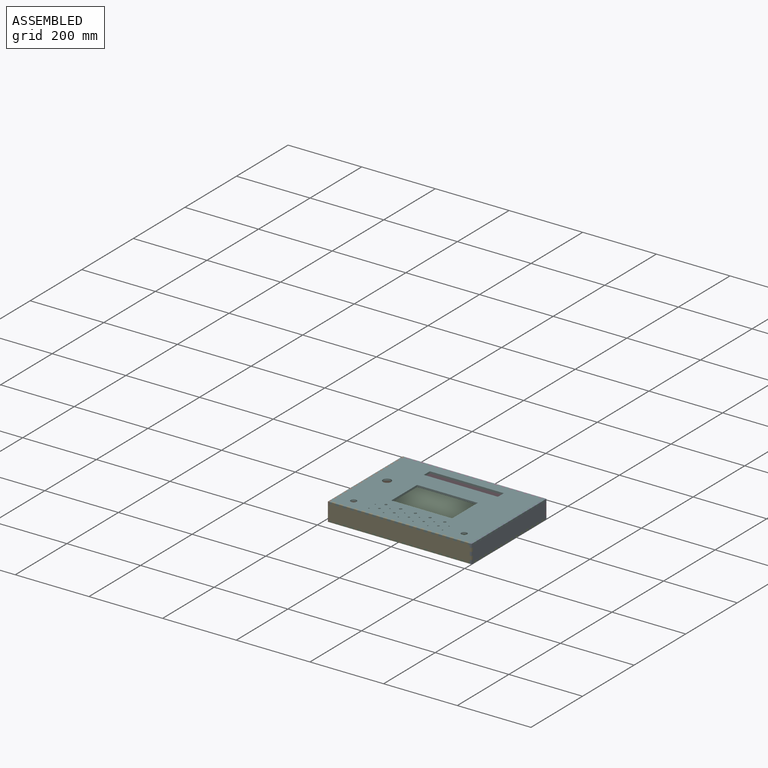
[diagram: assembled view]
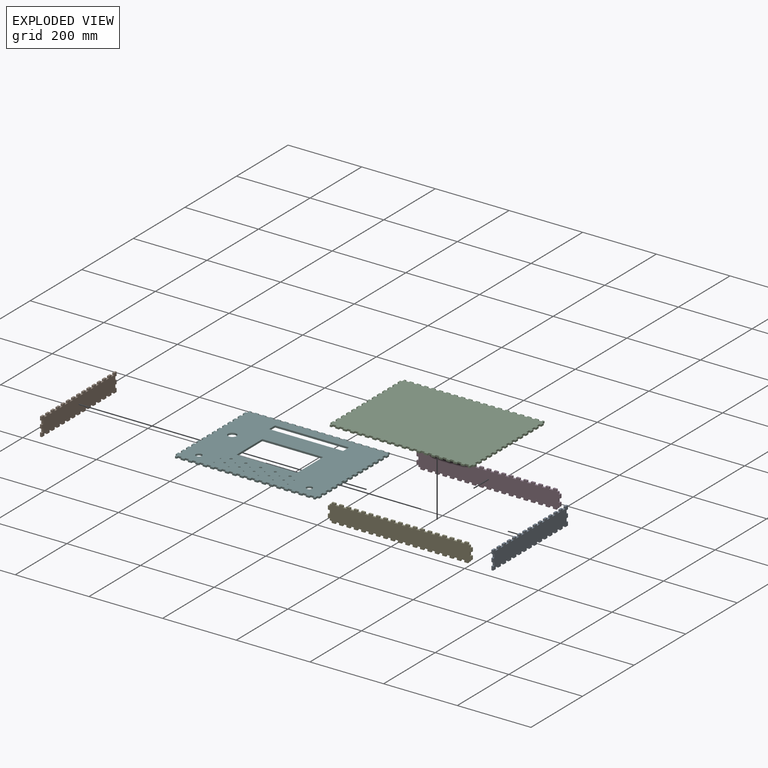
[diagram: exploded view]
GUIDED TOUR — MATED ASSEMBLY (Onshape document 58454a1c1316291098a44c90, AutoMate assembly 58454a1c1316291098a44c90_6ab6e86a1b761d5ac9e8e9ca_1e083ecb8c683d92ed4c0524_default)

This assembly has 6 components, labeled P0..P5 below (a component is one placed occurrence of a part; the same part can appear more than once), held together by 5 mates. A mate is a constraint between two components; its type names the relative motion it leaves free:
  FASTENED — locks the two components together rigidly (no relative motion).
Axis/direction vectors are unit vectors and 'through' points are millimeter coordinates, both in the assembly's world frame.

MATES
  1. FASTENED "Fastened 1": P1 <-> P2, direction (0.000, -1.000, 0.000) through (-176.02, -186.02, -19.27) mm
  2. FASTENED "Fastened 6": P3 <-> P1, direction (-1.000, 0.000, 0.000) through (-181.02, 98.98, 10.73) mm
  3. FASTENED "Fastened 5": P4 <-> P0, direction (1.000, 0.000, 0.000) through (208.98, -181.02, 10.73) mm
  4. FASTENED "Fastened 2": P0 <-> P2, direction (0.000, -1.000, 0.000) through (203.98, -186.02, -19.27) mm
  5. FASTENED "Fastened 3": P0 <-> P5, direction (1.000, 0.000, 0.000) through (208.98, -176.02, 25.73) mm

ASSEMBLY ORDER
  1. P4 — the base component [order verified]
  2. P0 [order verified]
  3. P5 [order verified]
  4. P3 [order verified]
  5. P2 [order verified]
  6. P1 [order verified]
Order-tag legend:
  [order verified] — this step's position reverses a verified removal order: the component was checked to insert without passing through the ones already placed.

Of the 6 components, 6 carry the full construction recipe — the FeatureScript program that regenerates the part's solid from scratch; the rest are supplied as boundary geometry only.
Each toured component is shown spotlighted twice — in the assembled view, then in the exploded view, where a leader line traces a displaced component back to its assembled socket (saturated green if recipe-attached, orange if geometry-only; every other component desaturated gray) — followed by its recipe or geometry summary and the mates that hold it.
NOTE — this tour is split across 2 documents so each fits a 32k-token context. This is document 1: the component sections continue in the remaining 1 document, each repeating the header above.
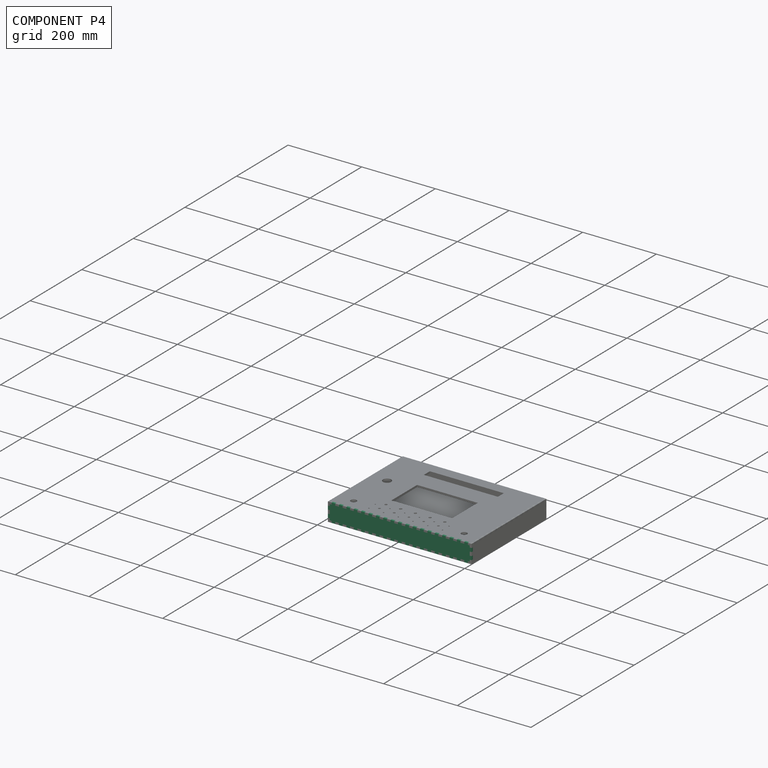
[diagram: component P4 — assembled]
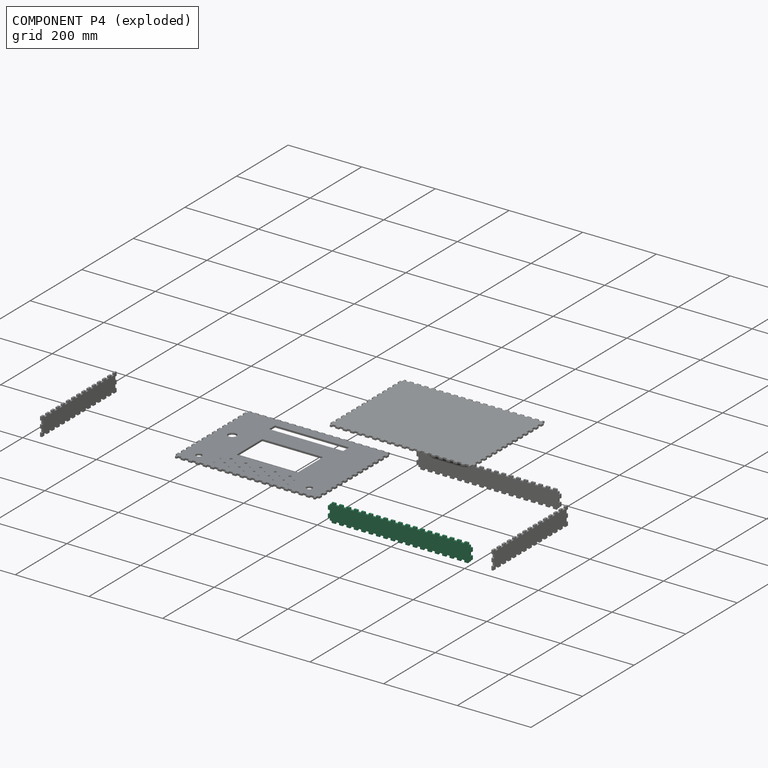
[diagram: component P4 — exploded]
COMPONENT P4 — same part as P3 (CADFS 00366135); its construction recipe is shown at P3.
Held by: FASTENED mate "Fastened 5" to P0.
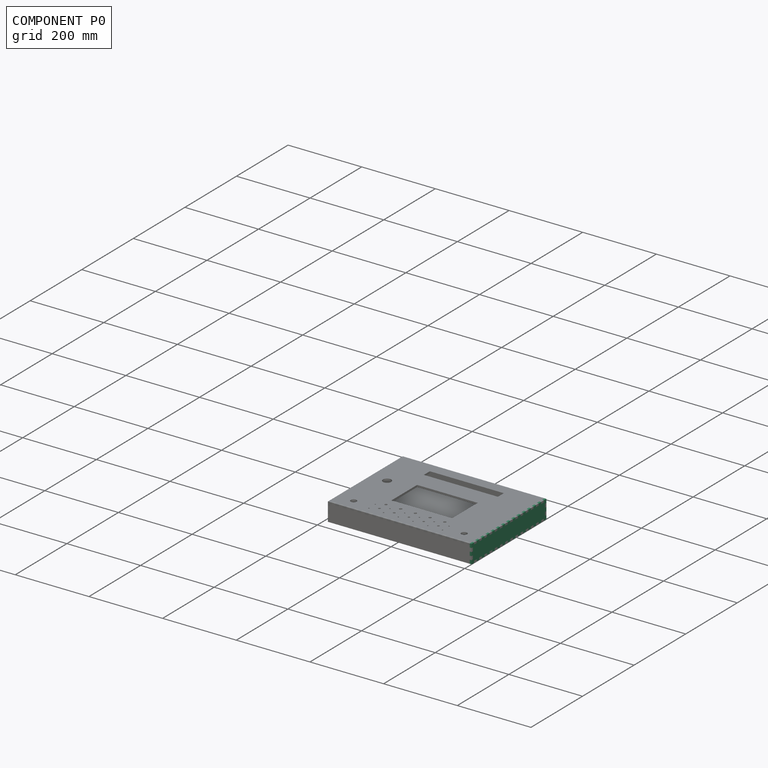
[diagram: component P0 — assembled]
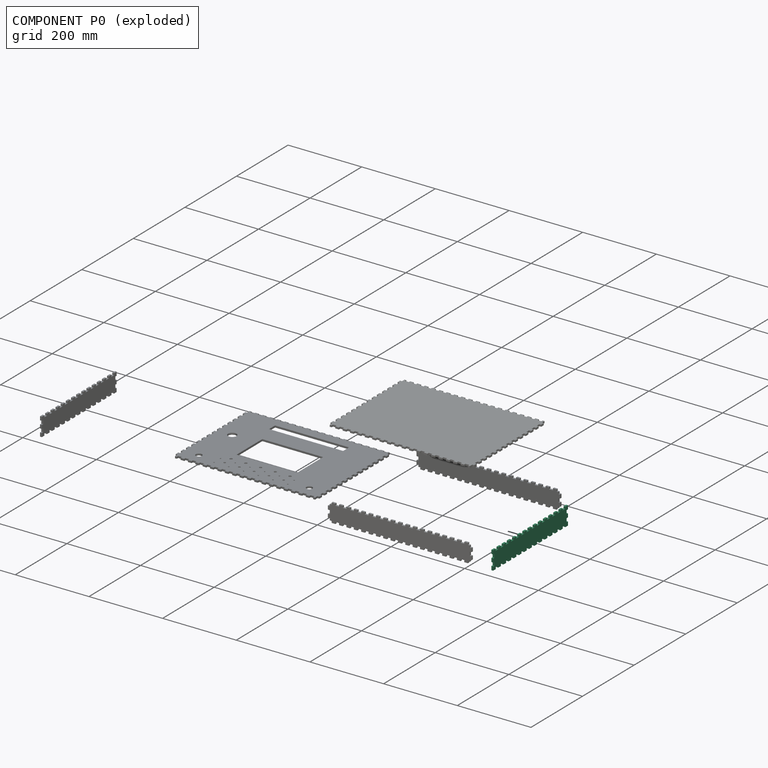
[diagram: component P0 — exploded]
COMPONENT P0 — recipe-attached (CADFS 00366134, mesh-verified: the recipe's output STEP matches this component's geometry to below the mesh-comparison resolution (tessellation chordal tolerance ~0.441 mm)).
Held by: FASTENED mate "Fastened 5" to P4; FASTENED mate "Fastened 2" to P2; FASTENED mate "Fastened 3" to P5.
Construction recipe (FeatureScript — the CAD program that rebuilds this solid; sketch coordinates are in the units given by the * unit suffixes, e.g. mm):

FeatureScript 1511;
import(path : "onshape/std/geometry.fs", version : "1511.0");
import(path : "onshape/std/common.fs", version : "1511.0");
const mm = millimeter;
const VERTEX = EntityType.VERTEX;
const EDGE = EntityType.EDGE;
const FACE = EntityType.FACE;
const BODY = EntityType.BODY;
function v(x, y){return vector(x, y);}
function OD(order){return orderDisambiguation(order);}
function OSD(set){return originalSetDisambiguation(set);}
function TD(topology){return topologyDisambiguation(topology);}
function TDD(query){return trueDependencyDisambiguation(query);}
function sQuery(a, b, c) {return sketchEntityQuery(a, b, c);}

annotation { "Feature Type Name" : "Feature", "Feature Type Description" : "" }
export const myFeature = defineFeature(function(context is Context, id is Id, definition is map)
    precondition{}
    {
        {
            var Q0;
            Q0=qCreatedBy(makeId("Right.planeOp"),FACE);
            var sketch = newSketch(context, id + "F0", { "sketchPlane" : qUnion([Q0])});
            skPoint(sketch, "E0.middle", {"position": v(0, 0) * mm});
            skLineSegment(sketch, "E1", {"start": v(-145, 25) * mm, "end": v(-135, 25) * mm});
            skLineSegment(sketch, "E2", {"start": v(-135, 25) * mm, "end": v(-135, 20) * mm});
            skLineSegment(sketch, "E3", {"start": v(-135, 20) * mm, "end": v(-125, 20) * mm});
            skLineSegment(sketch, "E4", {"start": v(-125, 20) * mm, "end": v(-125, 25) * mm});
            skLineSegment(sketch, "E5.1.0.0", {"start": v(-125, 25) * mm, "end": v(-115, 25) * mm});
            skLineSegment(sketch, "E5.1.0.1", {"start": v(-115, 25) * mm, "end": v(-115, 20) * mm});
            skLineSegment(sketch, "E5.1.0.2", {"start": v(-115, 20) * mm, "end": v(-105, 20) * mm});
            skLineSegment(sketch, "E5.1.0.3", {"start": v(-105, 20) * mm, "end": v(-105, 25) * mm});
            skLineSegment(sketch, "E5.2.0.0", {"start": v(-105, 25) * mm, "end": v(-95, 25) * mm});
            skLineSegment(sketch, "E5.2.0.1", {"start": v(-95, 25) * mm, "end": v(-95, 20) * mm});
            skLineSegment(sketch, "E5.2.0.2", {"start": v(-95, 20) * mm, "end": v(-85, 20) * mm});
            skLineSegment(sketch, "E5.2.0.3", {"start": v(-85, 20) * mm, "end": v(-85, 25) * mm});
            skLineSegment(sketch, "E5.3.0.0", {"start": v(-85, 25) * mm, "end": v(-75, 25) * mm});
            skLineSegment(sketch, "E5.3.0.1", {"start": v(-75, 25) * mm, "end": v(-75, 20) * mm});
            skLineSegment(sketch, "E5.3.0.2", {"start": v(-75, 20) * mm, "end": v(-65, 20) * mm});
            skLineSegment(sketch, "E5.3.0.3", {"start": v(-65, 20) * mm, "end": v(-65, 25) * mm});
            skLineSegment(sketch, "E5.4.0.0", {"start": v(-65, 25) * mm, "end": v(-55, 25) * mm});
            skLineSegment(sketch, "E5.4.0.1", {"start": v(-55, 25) * mm, "end": v(-55, 20) * mm});
            skLineSegment(sketch, "E5.4.0.2", {"start": v(-55, 20) * mm, "end": v(-45, 20) * mm});
            skLineSegment(sketch, "E5.4.0.3", {"start": v(-45, 20) * mm, "end": v(-45, 25) * mm});
            skLineSegment(sketch, "E5.5.0.0", {"start": v(-45, 25) * mm, "end": v(-35, 25) * mm});
            skLineSegment(sketch, "E5.5.0.1", {"start": v(-35, 25) * mm, "end": v(-35, 20) * mm});
            skLineSegment(sketch, "E5.5.0.2", {"start": v(-35, 20) * mm, "end": v(-25, 20) * mm});
            skLineSegment(sketch, "E5.5.0.3", {"start": v(-25, 20) * mm, "end": v(-25, 25) * mm});
            skLineSegment(sketch, "E5.6.0.0", {"start": v(-25, 25) * mm, "end": v(-15, 25) * mm});
            skLineSegment(sketch, "E5.6.0.1", {"start": v(-15, 25) * mm, "end": v(-15, 20) * mm});
            skLineSegment(sketch, "E5.6.0.2", {"start": v(-15, 20) * mm, "end": v(-5, 20) * mm});
            skLineSegment(sketch, "E5.6.0.3", {"start": v(-5, 20) * mm, "end": v(-5, 25) * mm});
            skLineSegment(sketch, "E5.7.0.0", {"start": v(-5, 25) * mm, "end": v(5, 25) * mm});
            skLineSegment(sketch, "E5.7.0.1", {"start": v(5, 25) * mm, "end": v(5, 20) * mm});
            skLineSegment(sketch, "E5.7.0.2", {"start": v(5, 20) * mm, "end": v(15, 20) * mm});
            skLineSegment(sketch, "E5.7.0.3", {"start": v(15, 20) * mm, "end": v(15, 25) * mm});
            skLineSegment(sketch, "E5.8.0.0", {"start": v(15, 25) * mm, "end": v(25, 25) * mm});
            skLineSegment(sketch, "E5.8.0.1", {"start": v(25, 25) * mm, "end": v(25, 20) * mm});
            skLineSegment(sketch, "E5.8.0.2", {"start": v(25, 20) * mm, "end": v(35, 20) * mm});
            skLineSegment(sketch, "E5.8.0.3", {"start": v(35, 20) * mm, "end": v(35, 25) * mm});
            skLineSegment(sketch, "E5.9.0.0", {"start": v(35, 25) * mm, "end": v(45, 25) * mm});
            skLineSegment(sketch, "E5.9.0.1", {"start": v(45, 25) * mm, "end": v(45, 20) * mm});
            skLineSegment(sketch, "E5.9.0.2", {"start": v(45, 20) * mm, "end": v(55, 20) * mm});
            skLineSegment(sketch, "E5.9.0.3", {"start": v(55, 20) * mm, "end": v(55, 25) * mm});
            skLineSegment(sketch, "E5.10.0.0", {"start": v(55, 25) * mm, "end": v(65, 25) * mm});
            skLineSegment(sketch, "E5.10.0.1", {"start": v(65, 25) * mm, "end": v(65, 20) * mm});
            skLineSegment(sketch, "E5.10.0.2", {"start": v(65, 20) * mm, "end": v(75, 20) * mm});
            skLineSegment(sketch, "E5.10.0.3", {"start": v(75, 20) * mm, "end": v(75, 25) * mm});
            skLineSegment(sketch, "E5.11.0.0", {"start": v(75, 25) * mm, "end": v(85, 25) * mm});
            skLineSegment(sketch, "E5.11.0.1", {"start": v(85, 25) * mm, "end": v(85, 20) * mm});
            skLineSegment(sketch, "E5.11.0.2", {"start": v(85, 20) * mm, "end": v(95, 20) * mm});
            skLineSegment(sketch, "E5.11.0.3", {"start": v(95, 20) * mm, "end": v(95, 25) * mm});
            skLineSegment(sketch, "E5.12.0.0", {"start": v(95, 25) * mm, "end": v(105, 25) * mm});
            skLineSegment(sketch, "E5.12.0.1", {"start": v(105, 25) * mm, "end": v(105, 20) * mm});
            skLineSegment(sketch, "E5.12.0.2", {"start": v(105, 20) * mm, "end": v(115, 20) * mm});
            skLineSegment(sketch, "E5.12.0.3", {"start": v(115, 20) * mm, "end": v(115, 25) * mm});
            skLineSegment(sketch, "E5.13.0.0", {"start": v(115, 25) * mm, "end": v(125, 25) * mm});
            skLineSegment(sketch, "E5.13.0.1", {"start": v(125, 25) * mm, "end": v(125, 20) * mm});
            skLineSegment(sketch, "E5.13.0.2", {"start": v(125, 20) * mm, "end": v(135, 20) * mm});
            skLineSegment(sketch, "E5.13.0.3", {"start": v(135, 20) * mm, "end": v(135, 25) * mm});
            skLineSegment(sketch, "E6", {"start": v(135, 25) * mm, "end": v(145, 25) * mm});
            skLineSegment(sketch, "E7", {"start": v(-135, -25) * mm, "end": v(-135, -20) * mm});
            skLineSegment(sketch, "E8", {"start": v(-135, -20) * mm, "end": v(-125, -20) * mm});
            skLineSegment(sketch, "E9", {"start": v(-125, -20) * mm, "end": v(-125, -25) * mm});
            skLineSegment(sketch, "E10", {"start": v(-145, -25) * mm, "end": v(-135, -25) * mm});
            skLineSegment(sketch, "E11.1.0.0", {"start": v(-125, -25) * mm, "end": v(-115, -25) * mm});
            skLineSegment(sketch, "E11.1.0.1", {"start": v(-115, -25) * mm, "end": v(-115, -20) * mm});
            skLineSegment(sketch, "E11.1.0.2", {"start": v(-115, -20) * mm, "end": v(-105, -20) * mm});
            skLineSegment(sketch, "E11.1.0.3", {"start": v(-105, -20) * mm, "end": v(-105, -25) * mm});
            skLineSegment(sketch, "E11.2.0.0", {"start": v(-105, -25) * mm, "end": v(-95, -25) * mm});
            skLineSegment(sketch, "E11.2.0.1", {"start": v(-95, -25) * mm, "end": v(-95, -20) * mm});
            skLineSegment(sketch, "E11.2.0.2", {"start": v(-95, -20) * mm, "end": v(-85, -20) * mm});
            skLineSegment(sketch, "E11.2.0.3", {"start": v(-85, -20) * mm, "end": v(-85, -25) * mm});
            skLineSegment(sketch, "E11.3.0.0", {"start": v(-85, -25) * mm, "end": v(-75, -25) * mm});
            skLineSegment(sketch, "E11.3.0.1", {"start": v(-75, -25) * mm, "end": v(-75, -20) * mm});
            skLineSegment(sketch, "E11.3.0.2", {"start": v(-75, -20) * mm, "end": v(-65, -20) * mm});
            skLineSegment(sketch, "E11.3.0.3", {"start": v(-65, -20) * mm, "end": v(-65, -25) * mm});
            skLineSegment(sketch, "E11.4.0.0", {"start": v(-65, -25) * mm, "end": v(-55, -25) * mm});
            skLineSegment(sketch, "E11.4.0.1", {"start": v(-55, -25) * mm, "end": v(-55, -20) * mm});
            skLineSegment(sketch, "E11.4.0.2", {"start": v(-55, -20) * mm, "end": v(-45, -20) * mm});
            skLineSegment(sketch, "E11.4.0.3", {"start": v(-45, -20) * mm, "end": v(-45, -25) * mm});
            skLineSegment(sketch, "E11.5.0.0", {"start": v(-45, -25) * mm, "end": v(-35, -25) * mm});
            skLineSegment(sketch, "E11.5.0.1", {"start": v(-35, -25) * mm, "end": v(-35, -20) * mm});
            skLineSegment(sketch, "E11.5.0.2", {"start": v(-35, -20) * mm, "end": v(-25, -20) * mm});
            skLineSegment(sketch, "E11.5.0.3", {"start": v(-25, -20) * mm, "end": v(-25, -25) * mm});
            skLineSegment(sketch, "E11.6.0.0", {"start": v(-25, -25) * mm, "end": v(-15, -25) * mm});
            skLineSegment(sketch, "E11.6.0.1", {"start": v(-15, -25) * mm, "end": v(-15, -20) * mm});
            skLineSegment(sketch, "E11.6.0.2", {"start": v(-15, -20) * mm, "end": v(-5, -20) * mm});
            skLineSegment(sketch, "E11.6.0.3", {"start": v(-5, -20) * mm, "end": v(-5, -25) * mm});
            skLineSegment(sketch, "E11.7.0.0", {"start": v(-5, -25) * mm, "end": v(5, -25) * mm});
            skLineSegment(sketch, "E11.7.0.1", {"start": v(5, -25) * mm, "end": v(5, -20) * mm});
            skLineSegment(sketch, "E11.7.0.2", {"start": v(5, -20) * mm, "end": v(15, -20) * mm});
            skLineSegment(sketch, "E11.7.0.3", {"start": v(15, -20) * mm, "end": v(15, -25) * mm});
            skLineSegment(sketch, "E11.8.0.0", {"start": v(15, -25) * mm, "end": v(25, -25) * mm});
            skLineSegment(sketch, "E11.8.0.1", {"start": v(25, -25) * mm, "end": v(25, -20) * mm});
            skLineSegment(sketch, "E11.8.0.2", {"start": v(25, -20) * mm, "end": v(35, -20) * mm});
            skLineSegment(sketch, "E11.8.0.3", {"start": v(35, -20) * mm, "end": v(35, -25) * mm});
            skLineSegment(sketch, "E11.9.0.0", {"start": v(35, -25) * mm, "end": v(45, -25) * mm});
            skLineSegment(sketch, "E11.9.0.1", {"start": v(45, -25) * mm, "end": v(45, -20) * mm});
            skLineSegment(sketch, "E11.9.0.2", {"start": v(45, -20) * mm, "end": v(55, -20) * mm});
            skLineSegment(sketch, "E11.9.0.3", {"start": v(55, -20) * mm, "end": v(55, -25) * mm});
            skLineSegment(sketch, "E11.10.0.0", {"start": v(55, -25) * mm, "end": v(65, -25) * mm});
            skLineSegment(sketch, "E11.10.0.1", {"start": v(65, -25) * mm, "end": v(65, -20) * mm});
            skLineSegment(sketch, "E11.10.0.2", {"start": v(65, -20) * mm, "end": v(75, -20) * mm});
            skLineSegment(sketch, "E11.10.0.3", {"start": v(75, -20) * mm, "end": v(75, -25) * mm});
            skLineSegment(sketch, "E11.11.0.0", {"start": v(75, -25) * mm, "end": v(85, -25) * mm});
            skLineSegment(sketch, "E11.11.0.1", {"start": v(85, -25) * mm, "end": v(85, -20) * mm});
            skLineSegment(sketch, "E11.11.0.2", {"start": v(85, -20) * mm, "end": v(95, -20) * mm});
            skLineSegment(sketch, "E11.11.0.3", {"start": v(95, -20) * mm, "end": v(95, -25) * mm});
            skLineSegment(sketch, "E11.12.0.0", {"start": v(95, -25) * mm, "end": v(105, -25) * mm});
            skLineSegment(sketch, "E11.12.0.1", {"start": v(105, -25) * mm, "end": v(105, -20) * mm});
            skLineSegment(sketch, "E11.12.0.2", {"start": v(105, -20) * mm, "end": v(115, -20) * mm});
            skLineSegment(sketch, "E11.12.0.3", {"start": v(115, -20) * mm, "end": v(115, -25) * mm});
            skLineSegment(sketch, "E11.13.0.0", {"start": v(115, -25) * mm, "end": v(125, -25) * mm});
            skLineSegment(sketch, "E11.13.0.1", {"start": v(125, -25) * mm, "end": v(125, -20) * mm});
            skLineSegment(sketch, "E11.13.0.2", {"start": v(125, -20) * mm, "end": v(135, -20) * mm});
            skLineSegment(sketch, "E11.13.0.3", {"start": v(135, -20) * mm, "end": v(135, -25) * mm});
            skLineSegment(sketch, "E12", {"start": v(135, -25) * mm, "end": v(145, -25) * mm});
            skLineSegment(sketch, "E13", {"start": v(145, -25) * mm, "end": v(145, -15) * mm});
            skLineSegment(sketch, "E14", {"start": v(145, -15) * mm, "end": v(140, -15) * mm});
            skLineSegment(sketch, "E15", {"start": v(140, -15) * mm, "end": v(140, -5) * mm});
            skLineSegment(sketch, "E16", {"start": v(140, -5) * mm, "end": v(145, -5) * mm});
            skLineSegment(sketch, "E17.1.0.0", {"start": v(145, -5) * mm, "end": v(145, 5) * mm});
            skLineSegment(sketch, "E17.1.0.1", {"start": v(145, 5) * mm, "end": v(140, 5) * mm});
            skLineSegment(sketch, "E17.1.0.2", {"start": v(140, 5) * mm, "end": v(140, 15) * mm});
            skLineSegment(sketch, "E17.1.0.3", {"start": v(140, 15) * mm, "end": v(145, 15) * mm});
            skLineSegment(sketch, "E18", {"start": v(145, 15) * mm, "end": v(145, 25) * mm});
            skLineSegment(sketch, "E19", {"start": v(-145, 25) * mm, "end": v(-145, 15) * mm});
            skLineSegment(sketch, "E20", {"start": v(-145, 15) * mm, "end": v(-140, 15) * mm});
            skLineSegment(sketch, "E21", {"start": v(-140, 15) * mm, "end": v(-140, 5) * mm});
            skLineSegment(sketch, "E22", {"start": v(-140, 5) * mm, "end": v(-145, 5) * mm});
            skLineSegment(sketch, "E23.1.0.0", {"start": v(-145, 5) * mm, "end": v(-145, -5) * mm});
            skLineSegment(sketch, "E23.1.0.1", {"start": v(-145, -5) * mm, "end": v(-140, -5) * mm});
            skLineSegment(sketch, "E23.1.0.2", {"start": v(-140, -5) * mm, "end": v(-140, -15) * mm});
            skLineSegment(sketch, "E23.1.0.3", {"start": v(-140, -15) * mm, "end": v(-145, -15) * mm});
            skLineSegment(sketch, "E24", {"start": v(-145, -15) * mm, "end": v(-145, -25) * mm});
            skSolve(sketch);
        }
        {
            var Q0;
            Q0 = qSketchRegion(id + "F0", true);
            extrude(context, id + "F1", {"entities" : qUnion([Q0]), "endBound" : BoundingType.SYMMETRIC, "depth" : 5 * mm});
        }
    });
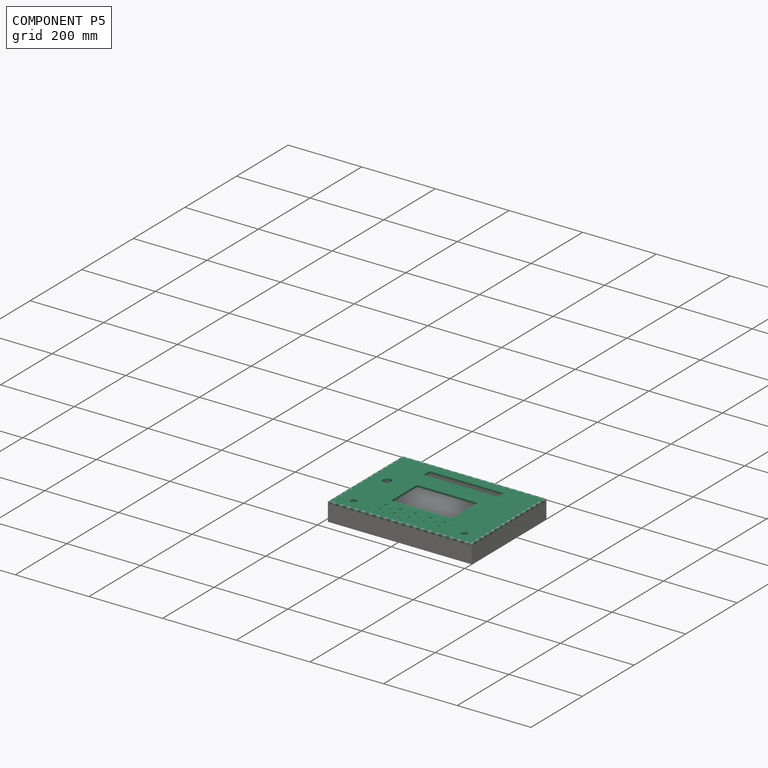
[diagram: component P5 — assembled]
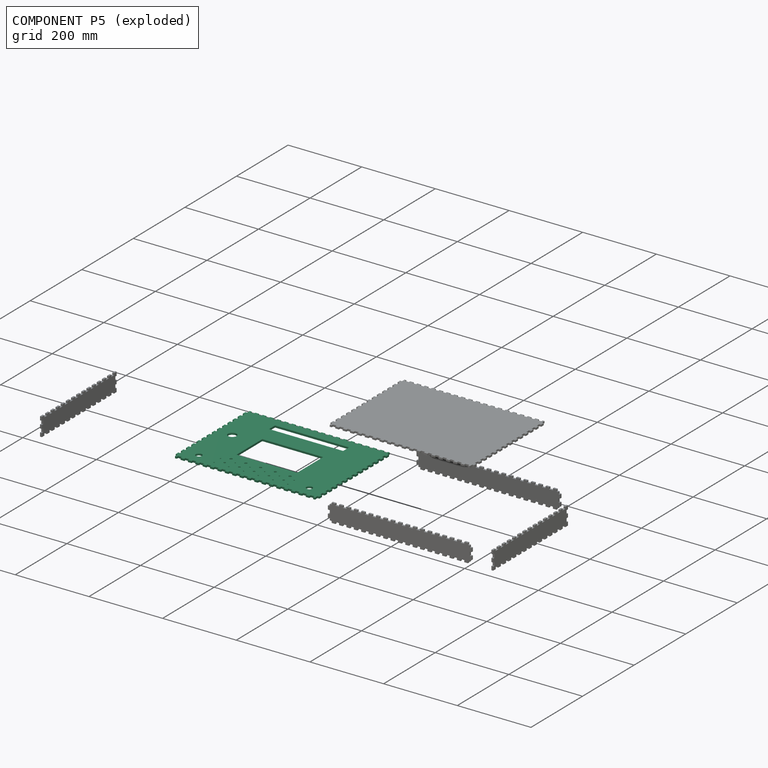
[diagram: component P5 — exploded]
COMPONENT P5 — recipe-attached (CADFS 00366133, mesh-verified: the recipe's output STEP matches this component's geometry to below the mesh-comparison resolution (tessellation chordal tolerance ~0.729 mm)).
Held by: FASTENED mate "Fastened 3" to P0.
Construction recipe (FeatureScript — the CAD program that rebuilds this solid; sketch coordinates are in the units given by the * unit suffixes, e.g. mm):

FeatureScript 1511;
import(path : "onshape/std/geometry.fs", version : "1511.0");
import(path : "onshape/std/common.fs", version : "1511.0");
const mm = millimeter;
const VERTEX = EntityType.VERTEX;
const EDGE = EntityType.EDGE;
const FACE = EntityType.FACE;
const BODY = EntityType.BODY;
function v(x, y){return vector(x, y);}
function OD(order){return orderDisambiguation(order);}
function OSD(set){return originalSetDisambiguation(set);}
function TD(topology){return topologyDisambiguation(topology);}
function TDD(query){return trueDependencyDisambiguation(query);}
function sQuery(a, b, c) {return sketchEntityQuery(a, b, c);}

annotation { "Feature Type Name" : "Feature", "Feature Type Description" : "" }
export const myFeature = defineFeature(function(context is Context, id is Id, definition is map)
    precondition{}
    {
        {
            var Q0;
            Q0=qCreatedBy(makeId("Top.planeOp"),FACE);
            var sketch = newSketch(context, id + "F0", { "sketchPlane" : qUnion([Q0])});
            skPoint(sketch, "E0.middle", {"position": v(0, 0) * mm});
            skLineSegment(sketch, "E1.bottom", {"start": v(82.5, -60) * mm, "end": v(-82.5, -60) * mm});
            skLineSegment(sketch, "E1.top", {"start": v(82.5, 40) * mm, "end": v(-82.5, 40) * mm});
            skLineSegment(sketch, "E1.left", {"start": v(82.5, -60) * mm, "end": v(82.5, 40) * mm});
            skLineSegment(sketch, "E1.right", {"start": v(-82.5, -60) * mm, "end": v(-82.5, 40) * mm});
            skPoint(sketch, "E1.middle", {"position": v(0, -10) * mm});
            skCircle(sketch, "E2", {"center": v(0, -84.5) * mm, "radius": 3.5 * mm});
            skCircle(sketch, "E3", {"center": v(40, -84.5) * mm, "radius": 3.5 * mm});
            skCircle(sketch, "E4", {"center": v(-80, -84.5) * mm, "radius": 3.5 * mm});
            skCircle(sketch, "E5", {"center": v(-40, -84.5) * mm, "radius": 3.5 * mm});
            skCircle(sketch, "E6", {"center": v(80, -84.5) * mm, "radius": 3.5 * mm});
            skLineSegment(sketch, "E7.bottom", {"start": v(100.5, 92) * mm, "end": v(-100.5, 92) * mm});
            skLineSegment(sketch, "E7.top", {"start": v(100.5, 115) * mm, "end": v(-100.5, 115) * mm});
            skLineSegment(sketch, "E7.left", {"start": v(100.5, 92) * mm, "end": v(100.5, 115) * mm});
            skLineSegment(sketch, "E7.right", {"start": v(-100.5, 92) * mm, "end": v(-100.5, 115) * mm});
            skPoint(sketch, "E7.middle", {"position": v(0, 103.5) * mm});
            skCircle(sketch, "E8", {"center": v(0, -109.5) * mm, "radius": 2.85 * mm});
            skCircle(sketch, "E9", {"center": v(-40, -109.5) * mm, "radius": 2.85 * mm});
            skCircle(sketch, "E10", {"center": v(-80, -109.5) * mm, "radius": 2.85 * mm});
            skCircle(sketch, "E11", {"center": v(40, -109.5) * mm, "radius": 2.85 * mm});
            skCircle(sketch, "E12", {"center": v(80, -109.5) * mm, "radius": 2.85 * mm});
            skCircle(sketch, "E13", {"center": v(-150, -109.5) * mm, "radius": 8 * mm});
            skCircle(sketch, "E14", {"center": v(150, -109.5) * mm, "radius": 8 * mm});
            skCircle(sketch, "E15", {"center": v(-150, 20) * mm, "radius": 11.25 * mm});
            skLineSegment(sketch, "E16.bottom", {"start": v(-18.5, -98.5) * mm, "end": v(-21.5, -98.5) * mm});
            skLineSegment(sketch, "E16.top", {"start": v(-18.5, -95.5) * mm, "end": v(-21.5, -95.5) * mm});
            skLineSegment(sketch, "E16.left", {"start": v(-18.5, -98.5) * mm, "end": v(-18.5, -95.5) * mm});
            skLineSegment(sketch, "E16.right", {"start": v(-21.5, -98.5) * mm, "end": v(-21.5, -95.5) * mm});
            skPoint(sketch, "E16.middle", {"position": v(-20, -97) * mm});
            skLineSegment(sketch, "E17.bottom", {"start": v(-58.5, -98.5) * mm, "end": v(-61.5, -98.5) * mm});
            skLineSegment(sketch, "E17.top", {"start": v(-58.5, -95.5) * mm, "end": v(-61.5, -95.5) * mm});
            skLineSegment(sketch, "E17.left", {"start": v(-58.5, -98.5) * mm, "end": v(-58.5, -95.5) * mm});
            skLineSegment(sketch, "E17.right", {"start": v(-61.5, -98.5) * mm, "end": v(-61.5, -95.5) * mm});
            skPoint(sketch, "E17.middle", {"position": v(-60, -97) * mm});
            skLineSegment(sketch, "E18.bottom", {"start": v(-98.5, -98.5) * mm, "end": v(-101.5, -98.5) * mm});
            skLineSegment(sketch, "E18.top", {"start": v(-98.5, -95.5) * mm, "end": v(-101.5, -95.5) * mm});
            skLineSegment(sketch, "E18.left", {"start": v(-98.5, -98.5) * mm, "end": v(-98.5, -95.5) * mm});
            skLineSegment(sketch, "E18.right", {"start": v(-101.5, -98.5) * mm, "end": v(-101.5, -95.5) * mm});
            skPoint(sketch, "E18.middle", {"position": v(-100, -97) * mm});
            skLineSegment(sketch, "E19.bottom", {"start": v(101.5, -98.39) * mm, "end": v(98.5, -98.39) * mm});
            skLineSegment(sketch, "E19.top", {"start": v(101.5, -95.39) * mm, "end": v(98.5, -95.39) * mm});
            skLineSegment(sketch, "E19.left", {"start": v(101.5, -98.39) * mm, "end": v(101.5, -95.39) * mm});
            skLineSegment(sketch, "E19.right", {"start": v(98.5, -98.39) * mm, "end": v(98.5, -95.39) * mm});
            skPoint(sketch, "E19.middle", {"position": v(100, -96.89) * mm});
            skLineSegment(sketch, "E20.bottom", {"start": v(61.5, -98.5) * mm, "end": v(58.5, -98.5) * mm});
            skLineSegment(sketch, "E20.top", {"start": v(61.5, -95.5) * mm, "end": v(58.5, -95.5) * mm});
            skLineSegment(sketch, "E20.left", {"start": v(61.5, -98.5) * mm, "end": v(61.5, -95.5) * mm});
            skLineSegment(sketch, "E20.right", {"start": v(58.5, -98.5) * mm, "end": v(58.5, -95.5) * mm});
            skPoint(sketch, "E20.middle", {"position": v(60, -97) * mm});
            skLineSegment(sketch, "E21.bottom", {"start": v(21.5, -98.5) * mm, "end": v(18.5, -98.5) * mm});
            skLineSegment(sketch, "E21.top", {"start": v(21.5, -95.5) * mm, "end": v(18.5, -95.5) * mm});
            skLineSegment(sketch, "E21.left", {"start": v(21.5, -98.5) * mm, "end": v(21.5, -95.5) * mm});
            skLineSegment(sketch, "E21.right", {"start": v(18.5, -98.5) * mm, "end": v(18.5, -95.5) * mm});
            skPoint(sketch, "E21.middle", {"position": v(20, -97) * mm});
            skPoint(sketch, "E22", {"position": v(-18.5, -97) * mm});
            skLineSegment(sketch, "E23.bottom", {"start": v(-18.5, -123.5) * mm, "end": v(-21.5, -123.5) * mm});
            skLineSegment(sketch, "E23.top", {"start": v(-18.5, -120.5) * mm, "end": v(-21.5, -120.5) * mm});
            skLineSegment(sketch, "E23.left", {"start": v(-18.5, -123.5) * mm, "end": v(-18.5, -120.5) * mm});
            skLineSegment(sketch, "E23.right", {"start": v(-21.5, -123.5) * mm, "end": v(-21.5, -120.5) * mm});
            skPoint(sketch, "E23.middle", {"position": v(-20, -122) * mm});
            skLineSegment(sketch, "E24.bottom", {"start": v(-58.5, -123.5) * mm, "end": v(-61.5, -123.5) * mm});
            skLineSegment(sketch, "E24.top", {"start": v(-58.5, -120.5) * mm, "end": v(-61.5, -120.5) * mm});
            skLineSegment(sketch, "E24.left", {"start": v(-58.5, -123.5) * mm, "end": v(-58.5, -120.5) * mm});
            skLineSegment(sketch, "E24.right", {"start": v(-61.5, -123.5) * mm, "end": v(-61.5, -120.5) * mm});
            skPoint(sketch, "E24.middle", {"position": v(-60, -122) * mm});
            skLineSegment(sketch, "E25.bottom", {"start": v(-98.5, -123.5) * mm, "end": v(-101.5, -123.5) * mm});
            skLineSegment(sketch, "E25.top", {"start": v(-98.5, -120.5) * mm, "end": v(-101.5, -120.5) * mm});
            skLineSegment(sketch, "E25.left", {"start": v(-98.5, -123.5) * mm, "end": v(-98.5, -120.5) * mm});
            skLineSegment(sketch, "E25.right", {"start": v(-101.5, -123.5) * mm, "end": v(-101.5, -120.5) * mm});
            skPoint(sketch, "E25.middle", {"position": v(-100, -122) * mm});
            skLineSegment(sketch, "E26.bottom", {"start": v(101.5, -123.39) * mm, "end": v(98.5, -123.39) * mm});
            skLineSegment(sketch, "E26.top", {"start": v(101.5, -120.39) * mm, "end": v(98.5, -120.39) * mm});
            skLineSegment(sketch, "E26.left", {"start": v(101.5, -123.39) * mm, "end": v(101.5, -120.39) * mm});
            skLineSegment(sketch, "E26.right", {"start": v(98.5, -123.39) * mm, "end": v(98.5, -120.39) * mm});
            skPoint(sketch, "E26.middle", {"position": v(100, -121.89) * mm});
            skLineSegment(sketch, "E27.bottom", {"start": v(61.5, -123.5) * mm, "end": v(58.5, -123.5) * mm});
            skLineSegment(sketch, "E27.top", {"start": v(61.5, -120.5) * mm, "end": v(58.5, -120.5) * mm});
            skLineSegment(sketch, "E27.left", {"start": v(61.5, -123.5) * mm, "end": v(61.5, -120.5) * mm});
            skLineSegment(sketch, "E27.right", {"start": v(58.5, -123.5) * mm, "end": v(58.5, -120.5) * mm});
            skPoint(sketch, "E27.middle", {"position": v(60, -122) * mm});
            skLineSegment(sketch, "E28.bottom", {"start": v(21.5, -123.5) * mm, "end": v(18.5, -123.5) * mm});
            skLineSegment(sketch, "E28.top", {"start": v(21.5, -120.5) * mm, "end": v(18.5, -120.5) * mm});
            skLineSegment(sketch, "E28.left", {"start": v(21.5, -123.5) * mm, "end": v(21.5, -120.5) * mm});
            skLineSegment(sketch, "E28.right", {"start": v(18.5, -123.5) * mm, "end": v(18.5, -120.5) * mm});
            skPoint(sketch, "E28.middle", {"position": v(20, -122) * mm});
            skPoint(sketch, "E29", {"position": v(-18.5, -122) * mm});
            skLineSegment(sketch, "E30", {"start": v(-195, -135) * mm, "end": v(-190, -135) * mm});
            skLineSegment(sketch, "E31", {"start": v(-190, -135) * mm, "end": v(-190, -145) * mm});
            skLineSegment(sketch, "E32", {"start": v(-190, -145) * mm, "end": v(-185, -145) * mm});
            skLineSegment(sketch, "E33", {"start": v(-185, -145) * mm, "end": v(-185, -140) * mm});
            skLineSegment(sketch, "E34", {"start": v(-185, -140) * mm, "end": v(-175, -140) * mm});
            skLineSegment(sketch, "E35", {"start": v(-175, -140) * mm, "end": v(-175, -145) * mm});
            skLineSegment(sketch, "E36", {"start": v(-175, -145) * mm, "end": v(-165, -145) * mm});
            skLineSegment(sketch, "E37", {"start": v(-165, -145) * mm, "end": v(-165, -140) * mm});
            skLineSegment(sketch, "E38", {"start": v(-165, -140) * mm, "end": v(-155, -140) * mm});
            skLineSegment(sketch, "E39", {"start": v(-155, -140) * mm, "end": v(-155, -145) * mm});
            skLineSegment(sketch, "E40.1.0.0", {"start": v(-155, -145) * mm, "end": v(-145, -145) * mm});
            skLineSegment(sketch, "E40.1.0.1", {"start": v(-145, -145) * mm, "end": v(-145, -140) * mm});
            skLineSegment(sketch, "E40.1.0.2", {"start": v(-145, -140) * mm, "end": v(-135, -140) * mm});
            skLineSegment(sketch, "E40.1.0.3", {"start": v(-135, -140) * mm, "end": v(-135, -145) * mm});
            skLineSegment(sketch, "E40.2.0.0", {"start": v(-135, -145) * mm, "end": v(-125, -145) * mm});
            skLineSegment(sketch, "E40.2.0.1", {"start": v(-125, -145) * mm, "end": v(-125, -140) * mm});
            skLineSegment(sketch, "E40.2.0.2", {"start": v(-125, -140) * mm, "end": v(-115, -140) * mm});
            skLineSegment(sketch, "E40.2.0.3", {"start": v(-115, -140) * mm, "end": v(-115, -145) * mm});
            skLineSegment(sketch, "E40.3.0.0", {"start": v(-115, -145) * mm, "end": v(-105, -145) * mm});
            skLineSegment(sketch, "E40.3.0.1", {"start": v(-105, -145) * mm, "end": v(-105, -140) * mm});
            skLineSegment(sketch, "E40.3.0.2", {"start": v(-105, -140) * mm, "end": v(-95, -140) * mm});
            skLineSegment(sketch, "E40.3.0.3", {"start": v(-95, -140) * mm, "end": v(-95, -145) * mm});
            skLineSegment(sketch, "E40.4.0.0", {"start": v(-95, -145) * mm, "end": v(-85, -145) * mm});
            skLineSegment(sketch, "E40.4.0.1", {"start": v(-85, -145) * mm, "end": v(-85, -140) * mm});
            skLineSegment(sketch, "E40.4.0.2", {"start": v(-85, -140) * mm, "end": v(-75, -140) * mm});
            skLineSegment(sketch, "E40.4.0.3", {"start": v(-75, -140) * mm, "end": v(-75, -145) * mm});
            skLineSegment(sketch, "E40.5.0.0", {"start": v(-75, -145) * mm, "end": v(-65, -145) * mm});
            skLineSegment(sketch, "E40.5.0.1", {"start": v(-65, -145) * mm, "end": v(-65, -140) * mm});
            skLineSegment(sketch, "E40.5.0.2", {"start": v(-65, -140) * mm, "end": v(-55, -140) * mm});
            skLineSegment(sketch, "E40.5.0.3", {"start": v(-55, -140) * mm, "end": v(-55, -145) * mm});
            skLineSegment(sketch, "E40.6.0.0", {"start": v(-55, -145) * mm, "end": v(-45, -145) * mm});
            skLineSegment(sketch, "E40.6.0.1", {"start": v(-45, -145) * mm, "end": v(-45, -140) * mm});
            skLineSegment(sketch, "E40.6.0.2", {"start": v(-45, -140) * mm, "end": v(-35, -140) * mm});
            skLineSegment(sketch, "E40.6.0.3", {"start": v(-35, -140) * mm, "end": v(-35, -145) * mm});
            skLineSegment(sketch, "E40.7.0.0", {"start": v(-35, -145) * mm, "end": v(-25, -145) * mm});
            skLineSegment(sketch, "E40.7.0.1", {"start": v(-25, -145) * mm, "end": v(-25, -140) * mm});
            skLineSegment(sketch, "E40.7.0.2", {"start": v(-25, -140) * mm, "end": v(-15, -140) * mm});
            skLineSegment(sketch, "E40.7.0.3", {"start": v(-15, -140) * mm, "end": v(-15, -145) * mm});
            skLineSegment(sketch, "E40.8.0.0", {"start": v(-15, -145) * mm, "end": v(-5, -145) * mm});
            skLineSegment(sketch, "E40.8.0.1", {"start": v(-5, -145) * mm, "end": v(-5, -140) * mm});
            skLineSegment(sketch, "E40.8.0.2", {"start": v(-5, -140) * mm, "end": v(5, -140) * mm});
            skLineSegment(sketch, "E40.8.0.3", {"start": v(5, -140) * mm, "end": v(5, -145) * mm});
            skLineSegment(sketch, "E40.9.0.0", {"start": v(5, -145) * mm, "end": v(15, -145) * mm});
            skLineSegment(sketch, "E40.9.0.1", {"start": v(15, -145) * mm, "end": v(15, -140) * mm});
            skLineSegment(sketch, "E40.9.0.2", {"start": v(15, -140) * mm, "end": v(25, -140) * mm});
            skLineSegment(sketch, "E40.9.0.3", {"start": v(25, -140) * mm, "end": v(25, -145) * mm});
            skLineSegment(sketch, "E40.10.0.0", {"start": v(25, -145) * mm, "end": v(35, -145) * mm});
            skLineSegment(sketch, "E40.10.0.1", {"start": v(35, -145) * mm, "end": v(35, -140) * mm});
            skLineSegment(sketch, "E40.10.0.2", {"start": v(35, -140) * mm, "end": v(45, -140) * mm});
            skLineSegment(sketch, "E40.10.0.3", {"start": v(45, -140) * mm, "end": v(45, -145) * mm});
            skLineSegment(sketch, "E40.11.0.0", {"start": v(45, -145) * mm, "end": v(55, -145) * mm});
            skLineSegment(sketch, "E40.11.0.1", {"start": v(55, -145) * mm, "end": v(55, -140) * mm});
            skLineSegment(sketch, "E40.11.0.2", {"start": v(55, -140) * mm, "end": v(65, -140) * mm});
            skLineSegment(sketch, "E40.11.0.3", {"start": v(65, -140) * mm, "end": v(65, -145) * mm});
            skLineSegment(sketch, "E40.12.0.0", {"start": v(65, -145) * mm, "end": v(75, -145) * mm});
            skLineSegment(sketch, "E40.12.0.1", {"start": v(75, -145) * mm, "end": v(75, -140) * mm});
            skLineSegment(sketch, "E40.12.0.2", {"start": v(75, -140) * mm, "end": v(85, -140) * mm});
            skLineSegment(sketch, "E40.12.0.3", {"start": v(85, -140) * mm, "end": v(85, -145) * mm});
            skLineSegment(sketch, "E40.13.0.0", {"start": v(85, -145) * mm, "end": v(95, -145) * mm});
            skLineSegment(sketch, "E40.13.0.1", {"start": v(95, -145) * mm, "end": v(95, -140) * mm});
            skLineSegment(sketch, "E40.13.0.2", {"start": v(95, -140) * mm, "end": v(105, -140) * mm});
            skLineSegment(sketch, "E40.13.0.3", {"start": v(105, -140) * mm, "end": v(105, -145) * mm});
            skLineSegment(sketch, "E40.14.0.0", {"start": v(105, -145) * mm, "end": v(115, -145) * mm});
            skLineSegment(sketch, "E40.14.0.1", {"start": v(115, -145) * mm, "end": v(115, -140) * mm});
            skLineSegment(sketch, "E40.14.0.2", {"start": v(115, -140) * mm, "end": v(125, -140) * mm});
            skLineSegment(sketch, "E40.14.0.3", {"start": v(125, -140) * mm, "end": v(125, -145) * mm});
            skLineSegment(sketch, "E40.15.0.0", {"start": v(125, -145) * mm, "end": v(135, -145) * mm});
            skLineSegment(sketch, "E40.15.0.1", {"start": v(135, -145) * mm, "end": v(135, -140) * mm});
            skLineSegment(sketch, "E40.15.0.2", {"start": v(135, -140) * mm, "end": v(145, -140) * mm});
            skLineSegment(sketch, "E40.15.0.3", {"start": v(145, -140) * mm, "end": v(145, -145) * mm});
            skLineSegment(sketch, "E40.16.0.0", {"start": v(145, -145) * mm, "end": v(155, -145) * mm});
            skLineSegment(sketch, "E40.16.0.1", {"start": v(155, -145) * mm, "end": v(155, -140) * mm});
            skLineSegment(sketch, "E40.16.0.2", {"start": v(155, -140) * mm, "end": v(165, -140) * mm});
            skLineSegment(sketch, "E40.16.0.3", {"start": v(165, -140) * mm, "end": v(165, -145) * mm});
            skLineSegment(sketch, "E40.17.0.0", {"start": v(165, -145) * mm, "end": v(175, -145) * mm});
            skLineSegment(sketch, "E40.17.0.1", {"start": v(175, -145) * mm, "end": v(175, -140) * mm});
            skLineSegment(sketch, "E40.17.0.2", {"start": v(175, -140) * mm, "end": v(185, -140) * mm});
            skLineSegment(sketch, "E40.17.0.3", {"start": v(185, -140) * mm, "end": v(185, -145) * mm});
            skLineSegment(sketch, "E40.direction1", {"start": v(-175, -145) * mm, "end": v(-155, -145) * mm, "construction": true});
            skLineSegment(sketch, "E41", {"start": v(185, -145) * mm, "end": v(190, -145) * mm});
            skLineSegment(sketch, "E42", {"start": v(190, -145) * mm, "end": v(190, -135) * mm});
            skLineSegment(sketch, "E43", {"start": v(190, -135) * mm, "end": v(195, -135) * mm});
            skLineSegment(sketch, "E44", {"start": v(195, 135) * mm, "end": v(190, 135) * mm});
            skLineSegment(sketch, "E45", {"start": v(190, 135) * mm, "end": v(190, 145) * mm});
            skLineSegment(sketch, "E46", {"start": v(190, 145) * mm, "end": v(185, 145) * mm});
            skLineSegment(sketch, "E47", {"start": v(185, 145) * mm, "end": v(185, 140) * mm});
            skLineSegment(sketch, "E48", {"start": v(185, 140) * mm, "end": v(175, 140) * mm});
            skLineSegment(sketch, "E49", {"start": v(175, 140) * mm, "end": v(175, 145) * mm});
            skLineSegment(sketch, "E50", {"start": v(175, 145) * mm, "end": v(165, 145) * mm});
            skLineSegment(sketch, "E51", {"start": v(165, 145) * mm, "end": v(165, 140) * mm});
            skLineSegment(sketch, "E52", {"start": v(165, 140) * mm, "end": v(155, 140) * mm});
            skLineSegment(sketch, "E53", {"start": v(155, 140) * mm, "end": v(155, 145) * mm});
            skLineSegment(sketch, "E54.1.0.0", {"start": v(155, 145) * mm, "end": v(145, 145) * mm});
            skLineSegment(sketch, "E54.1.0.1", {"start": v(145, 145) * mm, "end": v(145, 140) * mm});
            skLineSegment(sketch, "E54.1.0.2", {"start": v(145, 140) * mm, "end": v(135, 140) * mm});
            skLineSegment(sketch, "E54.1.0.3", {"start": v(135, 140) * mm, "end": v(135, 145) * mm});
            skLineSegment(sketch, "E54.2.0.0", {"start": v(135, 145) * mm, "end": v(125, 145) * mm});
            skLineSegment(sketch, "E54.2.0.1", {"start": v(125, 145) * mm, "end": v(125, 140) * mm});
            skLineSegment(sketch, "E54.2.0.2", {"start": v(125, 140) * mm, "end": v(115, 140) * mm});
            skLineSegment(sketch, "E54.2.0.3", {"start": v(115, 140) * mm, "end": v(115, 145) * mm});
            skLineSegment(sketch, "E54.3.0.0", {"start": v(115, 145) * mm, "end": v(105, 145) * mm});
            skLineSegment(sketch, "E54.3.0.1", {"start": v(105, 145) * mm, "end": v(105, 140) * mm});
            skLineSegment(sketch, "E54.3.0.2", {"start": v(105, 140) * mm, "end": v(95, 140) * mm});
            skLineSegment(sketch, "E54.3.0.3", {"start": v(95, 140) * mm, "end": v(95, 145) * mm});
            skLineSegment(sketch, "E54.4.0.0", {"start": v(95, 145) * mm, "end": v(85, 145) * mm});
            skLineSegment(sketch, "E54.4.0.1", {"start": v(85, 145) * mm, "end": v(85, 140) * mm});
            skLineSegment(sketch, "E54.4.0.2", {"start": v(85, 140) * mm, "end": v(75, 140) * mm});
            skLineSegment(sketch, "E54.4.0.3", {"start": v(75, 140) * mm, "end": v(75, 145) * mm});
            skLineSegment(sketch, "E54.5.0.0", {"start": v(75, 145) * mm, "end": v(65, 145) * mm});
            skLineSegment(sketch, "E54.5.0.1", {"start": v(65, 145) * mm, "end": v(65, 140) * mm});
            skLineSegment(sketch, "E54.5.0.2", {"start": v(65, 140) * mm, "end": v(55, 140) * mm});
            skLineSegment(sketch, "E54.5.0.3", {"start": v(55, 140) * mm, "end": v(55, 145) * mm});
            skLineSegment(sketch, "E54.6.0.0", {"start": v(55, 145) * mm, "end": v(45, 145) * mm});
            skLineSegment(sketch, "E54.6.0.1", {"start": v(45, 145) * mm, "end": v(45, 140) * mm});
            skLineSegment(sketch, "E54.6.0.2", {"start": v(45, 140) * mm, "end": v(35, 140) * mm});
            skLineSegment(sketch, "E54.6.0.3", {"start": v(35, 140) * mm, "end": v(35, 145) * mm});
            skLineSegment(sketch, "E54.7.0.0", {"start": v(35, 145) * mm, "end": v(25, 145) * mm});
            skLineSegment(sketch, "E54.7.0.1", {"start": v(25, 145) * mm, "end": v(25, 140) * mm});
            skLineSegment(sketch, "E54.7.0.2", {"start": v(25, 140) * mm, "end": v(15, 140) * mm});
            skLineSegment(sketch, "E54.7.0.3", {"start": v(15, 140) * mm, "end": v(15, 145) * mm});
            skLineSegment(sketch, "E54.8.0.0", {"start": v(15, 145) * mm, "end": v(5, 145) * mm});
            skLineSegment(sketch, "E54.8.0.1", {"start": v(5, 145) * mm, "end": v(5, 140) * mm});
            skLineSegment(sketch, "E54.8.0.2", {"start": v(5, 140) * mm, "end": v(-5, 140) * mm});
            skLineSegment(sketch, "E54.8.0.3", {"start": v(-5, 140) * mm, "end": v(-5, 145) * mm});
            skLineSegment(sketch, "E54.9.0.0", {"start": v(-5, 145) * mm, "end": v(-15, 145) * mm});
            skLineSegment(sketch, "E54.9.0.1", {"start": v(-15, 145) * mm, "end": v(-15, 140) * mm});
            skLineSegment(sketch, "E54.9.0.2", {"start": v(-15, 140) * mm, "end": v(-25, 140) * mm});
            skLineSegment(sketch, "E54.9.0.3", {"start": v(-25, 140) * mm, "end": v(-25, 145) * mm});
            skLineSegment(sketch, "E54.10.0.0", {"start": v(-25, 145) * mm, "end": v(-35, 145) * mm});
            skLineSegment(sketch, "E54.10.0.1", {"start": v(-35, 145) * mm, "end": v(-35, 140) * mm});
            skLineSegment(sketch, "E54.10.0.2", {"start": v(-35, 140) * mm, "end": v(-45, 140) * mm});
            skLineSegment(sketch, "E54.10.0.3", {"start": v(-45, 140) * mm, "end": v(-45, 145) * mm});
            skLineSegment(sketch, "E54.11.0.0", {"start": v(-45, 145) * mm, "end": v(-55, 145) * mm});
            skLineSegment(sketch, "E54.11.0.1", {"start": v(-55, 145) * mm, "end": v(-55, 140) * mm});
            skLineSegment(sketch, "E54.11.0.2", {"start": v(-55, 140) * mm, "end": v(-65, 140) * mm});
            skLineSegment(sketch, "E54.11.0.3", {"start": v(-65, 140) * mm, "end": v(-65, 145) * mm});
            skLineSegment(sketch, "E54.12.0.0", {"start": v(-65, 145) * mm, "end": v(-75, 145) * mm});
            skLineSegment(sketch, "E54.12.0.1", {"start": v(-75, 145) * mm, "end": v(-75, 140) * mm});
            skLineSegment(sketch, "E54.12.0.2", {"start": v(-75, 140) * mm, "end": v(-85, 140) * mm});
            skLineSegment(sketch, "E54.12.0.3", {"start": v(-85, 140) * mm, "end": v(-85, 145) * mm});
            skLineSegment(sketch, "E54.13.0.0", {"start": v(-85, 145) * mm, "end": v(-95, 145) * mm});
            skLineSegment(sketch, "E54.13.0.1", {"start": v(-95, 145) * mm, "end": v(-95, 140) * mm});
            skLineSegment(sketch, "E54.13.0.2", {"start": v(-95, 140) * mm, "end": v(-105, 140) * mm});
            skLineSegment(sketch, "E54.13.0.3", {"start": v(-105, 140) * mm, "end": v(-105, 145) * mm});
            skLineSegment(sketch, "E54.14.0.0", {"start": v(-105, 145) * mm, "end": v(-115, 145) * mm});
            skLineSegment(sketch, "E54.14.0.1", {"start": v(-115, 145) * mm, "end": v(-115, 140) * mm});
            skLineSegment(sketch, "E54.14.0.2", {"start": v(-115, 140) * mm, "end": v(-125, 140) * mm});
            skLineSegment(sketch, "E54.14.0.3", {"start": v(-125, 140) * mm, "end": v(-125, 145) * mm});
            skLineSegment(sketch, "E54.15.0.0", {"start": v(-125, 145) * mm, "end": v(-135, 145) * mm});
            skLineSegment(sketch, "E54.15.0.1", {"start": v(-135, 145) * mm, "end": v(-135, 140) * mm});
            skLineSegment(sketch, "E54.15.0.2", {"start": v(-135, 140) * mm, "end": v(-145, 140) * mm});
            skLineSegment(sketch, "E54.15.0.3", {"start": v(-145, 140) * mm, "end": v(-145, 145) * mm});
            skLineSegment(sketch, "E54.16.0.0", {"start": v(-145, 145) * mm, "end": v(-155, 145) * mm});
            skLineSegment(sketch, "E54.16.0.1", {"start": v(-155, 145) * mm, "end": v(-155, 140) * mm});
            skLineSegment(sketch, "E54.16.0.2", {"start": v(-155, 140) * mm, "end": v(-165, 140) * mm});
            skLineSegment(sketch, "E54.16.0.3", {"start": v(-165, 140) * mm, "end": v(-165, 145) * mm});
            skLineSegment(sketch, "E54.17.0.0", {"start": v(-165, 145) * mm, "end": v(-175, 145) * mm});
            skLineSegment(sketch, "E54.17.0.1", {"start": v(-175, 145) * mm, "end": v(-175, 140) * mm});
            skLineSegment(sketch, "E54.17.0.2", {"start": v(-175, 140) * mm, "end": v(-185, 140) * mm});
            skLineSegment(sketch, "E54.17.0.3", {"start": v(-185, 140) * mm, "end": v(-185, 145) * mm});
            skLineSegment(sketch, "E54.direction1", {"start": v(175, 145) * mm, "end": v(155, 145) * mm, "construction": true});
            skLineSegment(sketch, "E55", {"start": v(-185, 145) * mm, "end": v(-190, 145) * mm});
            skLineSegment(sketch, "E56", {"start": v(-190, 145) * mm, "end": v(-190, 135) * mm});
            skLineSegment(sketch, "E57", {"start": v(-190, 135) * mm, "end": v(-195, 135) * mm});
            skLineSegment(sketch, "E58", {"start": v(-195, 135) * mm, "end": v(-195, 125) * mm});
            skLineSegment(sketch, "E59", {"start": v(-195, 125) * mm, "end": v(-190, 125) * mm});
            skLineSegment(sketch, "E60", {"start": v(-190, 125) * mm, "end": v(-190, 115) * mm});
            skLineSegment(sketch, "E61.1.0.0", {"start": v(-190, 115) * mm, "end": v(-195, 115) * mm});
            skLineSegment(sketch, "E61.1.0.1", {"start": v(-195, 115) * mm, "end": v(-195, 105) * mm});
            skLineSegment(sketch, "E61.1.0.2", {"start": v(-195, 105) * mm, "end": v(-190, 105) * mm});
            skLineSegment(sketch, "E61.1.0.3", {"start": v(-190, 105) * mm, "end": v(-190, 95) * mm});
            skLineSegment(sketch, "E61.2.0.0", {"start": v(-190, 95) * mm, "end": v(-195, 95) * mm});
            skLineSegment(sketch, "E61.2.0.1", {"start": v(-195, 95) * mm, "end": v(-195, 85) * mm});
            skLineSegment(sketch, "E61.2.0.2", {"start": v(-195, 85) * mm, "end": v(-190, 85) * mm});
            skLineSegment(sketch, "E61.2.0.3", {"start": v(-190, 85) * mm, "end": v(-190, 75) * mm});
            skLineSegment(sketch, "E61.3.0.0", {"start": v(-190, 75) * mm, "end": v(-195, 75) * mm});
            skLineSegment(sketch, "E61.3.0.1", {"start": v(-195, 75) * mm, "end": v(-195, 65) * mm});
            skLineSegment(sketch, "E61.3.0.2", {"start": v(-195, 65) * mm, "end": v(-190, 65) * mm});
            skLineSegment(sketch, "E61.3.0.3", {"start": v(-190, 65) * mm, "end": v(-190, 55) * mm});
            skLineSegment(sketch, "E61.4.0.0", {"start": v(-190, 55) * mm, "end": v(-195, 55) * mm});
            skLineSegment(sketch, "E61.4.0.1", {"start": v(-195, 55) * mm, "end": v(-195, 45) * mm});
            skLineSegment(sketch, "E61.4.0.2", {"start": v(-195, 45) * mm, "end": v(-190, 45) * mm});
            skLineSegment(sketch, "E61.4.0.3", {"start": v(-190, 45) * mm, "end": v(-190, 35) * mm});
            skLineSegment(sketch, "E61.5.0.0", {"start": v(-190, 35) * mm, "end": v(-195, 35) * mm});
            skLineSegment(sketch, "E61.5.0.1", {"start": v(-195, 35) * mm, "end": v(-195, 25) * mm});
            skLineSegment(sketch, "E61.5.0.2", {"start": v(-195, 25) * mm, "end": v(-190, 25) * mm});
            skLineSegment(sketch, "E61.5.0.3", {"start": v(-190, 25) * mm, "end": v(-190, 15) * mm});
            skLineSegment(sketch, "E61.6.0.0", {"start": v(-190, 15) * mm, "end": v(-195, 15) * mm});
            skLineSegment(sketch, "E61.6.0.1", {"start": v(-195, 15) * mm, "end": v(-195, 5) * mm});
            skLineSegment(sketch, "E61.6.0.2", {"start": v(-195, 5) * mm, "end": v(-190, 5) * mm});
            skLineSegment(sketch, "E61.6.0.3", {"start": v(-190, 5) * mm, "end": v(-190, -5) * mm});
            skLineSegment(sketch, "E61.7.0.0", {"start": v(-190, -5) * mm, "end": v(-195, -5) * mm});
            skLineSegment(sketch, "E61.7.0.1", {"start": v(-195, -5) * mm, "end": v(-195, -15) * mm});
            skLineSegment(sketch, "E61.7.0.2", {"start": v(-195, -15) * mm, "end": v(-190, -15) * mm});
            skLineSegment(sketch, "E61.7.0.3", {"start": v(-190, -15) * mm, "end": v(-190, -25) * mm});
            skLineSegment(sketch, "E61.8.0.0", {"start": v(-190, -25) * mm, "end": v(-195, -25) * mm});
            skLineSegment(sketch, "E61.8.0.1", {"start": v(-195, -25) * mm, "end": v(-195, -35) * mm});
            skLineSegment(sketch, "E61.8.0.2", {"start": v(-195, -35) * mm, "end": v(-190, -35) * mm});
            skLineSegment(sketch, "E61.8.0.3", {"start": v(-190, -35) * mm, "end": v(-190, -45) * mm});
            skLineSegment(sketch, "E61.9.0.0", {"start": v(-190, -45) * mm, "end": v(-195, -45) * mm});
            skLineSegment(sketch, "E61.9.0.1", {"start": v(-195, -45) * mm, "end": v(-195, -55) * mm});
            skLineSegment(sketch, "E61.9.0.2", {"start": v(-195, -55) * mm, "end": v(-190, -55) * mm});
            skLineSegment(sketch, "E61.9.0.3", {"start": v(-190, -55) * mm, "end": v(-190, -65) * mm});
            skLineSegment(sketch, "E61.10.0.0", {"start": v(-190, -65) * mm, "end": v(-195, -65) * mm});
            skLineSegment(sketch, "E61.10.0.1", {"start": v(-195, -65) * mm, "end": v(-195, -75) * mm});
            skLineSegment(sketch, "E61.10.0.2", {"start": v(-195, -75) * mm, "end": v(-190, -75) * mm});
            skLineSegment(sketch, "E61.10.0.3", {"start": v(-190, -75) * mm, "end": v(-190, -85) * mm});
            skLineSegment(sketch, "E61.11.0.0", {"start": v(-190, -85) * mm, "end": v(-195, -85) * mm});
            skLineSegment(sketch, "E61.11.0.1", {"start": v(-195, -85) * mm, "end": v(-195, -95) * mm});
            skLineSegment(sketch, "E61.11.0.2", {"start": v(-195, -95) * mm, "end": v(-190, -95) * mm});
            skLineSegment(sketch, "E61.11.0.3", {"start": v(-190, -95) * mm, "end": v(-190, -105) * mm});
            skLineSegment(sketch, "E61.12.0.0", {"start": v(-190, -105) * mm, "end": v(-195, -105) * mm});
            skLineSegment(sketch, "E61.12.0.1", {"start": v(-195, -105) * mm, "end": v(-195, -115) * mm});
            skLineSegment(sketch, "E61.12.0.2", {"start": v(-195, -115) * mm, "end": v(-190, -115) * mm});
            skLineSegment(sketch, "E61.12.0.3", {"start": v(-190, -115) * mm, "end": v(-190, -125) * mm});
            skLineSegment(sketch, "E61.13.0.0", {"start": v(-190, -125) * mm, "end": v(-195, -125) * mm});
            skLineSegment(sketch, "E61.13.0.1", {"start": v(-195, -125) * mm, "end": v(-195, -135) * mm});
            skLineSegment(sketch, "E62", {"start": v(195, -135) * mm, "end": v(195, -125) * mm});
            skLineSegment(sketch, "E63", {"start": v(195, -125) * mm, "end": v(190, -125) * mm});
            skLineSegment(sketch, "E64", {"start": v(190, -125) * mm, "end": v(190, -115) * mm});
            skLineSegment(sketch, "E65.1.0.0", {"start": v(190, -115) * mm, "end": v(195, -115) * mm});
            skLineSegment(sketch, "E65.1.0.1", {"start": v(195, -115) * mm, "end": v(195, -105) * mm});
            skLineSegment(sketch, "E65.1.0.2", {"start": v(195, -105) * mm, "end": v(190, -105) * mm});
            skLineSegment(sketch, "E65.1.0.3", {"start": v(190, -105) * mm, "end": v(190, -95) * mm});
            skLineSegment(sketch, "E65.2.0.0", {"start": v(190, -95) * mm, "end": v(195, -95) * mm});
            skLineSegment(sketch, "E65.2.0.1", {"start": v(195, -95) * mm, "end": v(195, -85) * mm});
            skLineSegment(sketch, "E65.2.0.2", {"start": v(195, -85) * mm, "end": v(190, -85) * mm});
            skLineSegment(sketch, "E65.2.0.3", {"start": v(190, -85) * mm, "end": v(190, -75) * mm});
            skLineSegment(sketch, "E65.3.0.0", {"start": v(190, -75) * mm, "end": v(195, -75) * mm});
            skLineSegment(sketch, "E65.3.0.1", {"start": v(195, -75) * mm, "end": v(195, -65) * mm});
            skLineSegment(sketch, "E65.3.0.2", {"start": v(195, -65) * mm, "end": v(190, -65) * mm});
            skLineSegment(sketch, "E65.3.0.3", {"start": v(190, -65) * mm, "end": v(190, -55) * mm});
            skLineSegment(sketch, "E65.4.0.0", {"start": v(190, -55) * mm, "end": v(195, -55) * mm});
            skLineSegment(sketch, "E65.4.0.1", {"start": v(195, -55) * mm, "end": v(195, -45) * mm});
            skLineSegment(sketch, "E65.4.0.2", {"start": v(195, -45) * mm, "end": v(190, -45) * mm});
            skLineSegment(sketch, "E65.4.0.3", {"start": v(190, -45) * mm, "end": v(190, -35) * mm});
            skLineSegment(sketch, "E65.5.0.0", {"start": v(190, -35) * mm, "end": v(195, -35) * mm});
            skLineSegment(sketch, "E65.5.0.1", {"start": v(195, -35) * mm, "end": v(195, -25) * mm});
            skLineSegment(sketch, "E65.5.0.2", {"start": v(195, -25) * mm, "end": v(190, -25) * mm});
            skLineSegment(sketch, "E65.5.0.3", {"start": v(190, -25) * mm, "end": v(190, -15) * mm});
            skLineSegment(sketch, "E65.6.0.0", {"start": v(190, -15) * mm, "end": v(195, -15) * mm});
            skLineSegment(sketch, "E65.6.0.1", {"start": v(195, -15) * mm, "end": v(195, -5) * mm});
            skLineSegment(sketch, "E65.6.0.2", {"start": v(195, -5) * mm, "end": v(190, -5) * mm});
            skLineSegment(sketch, "E65.6.0.3", {"start": v(190, -5) * mm, "end": v(190, 5) * mm});
            skLineSegment(sketch, "E65.7.0.0", {"start": v(190, 5) * mm, "end": v(195, 5) * mm});
            skLineSegment(sketch, "E65.7.0.1", {"start": v(195, 5) * mm, "end": v(195, 15) * mm});
            skLineSegment(sketch, "E65.7.0.2", {"start": v(195, 15) * mm, "end": v(190, 15) * mm});
            skLineSegment(sketch, "E65.7.0.3", {"start": v(190, 15) * mm, "end": v(190, 25) * mm});
            skLineSegment(sketch, "E65.8.0.0", {"start": v(190, 25) * mm, "end": v(195, 25) * mm});
            skLineSegment(sketch, "E65.8.0.1", {"start": v(195, 25) * mm, "end": v(195, 35) * mm});
            skLineSegment(sketch, "E65.8.0.2", {"start": v(195, 35) * mm, "end": v(190, 35) * mm});
            skLineSegment(sketch, "E65.8.0.3", {"start": v(190, 35) * mm, "end": v(190, 45) * mm});
            skLineSegment(sketch, "E65.9.0.0", {"start": v(190, 45) * mm, "end": v(195, 45) * mm});
            skLineSegment(sketch, "E65.9.0.1", {"start": v(195, 45) * mm, "end": v(195, 55) * mm});
            skLineSegment(sketch, "E65.9.0.2", {"start": v(195, 55) * mm, "end": v(190, 55) * mm});
            skLineSegment(sketch, "E65.9.0.3", {"start": v(190, 55) * mm, "end": v(190, 65) * mm});
            skLineSegment(sketch, "E65.10.0.0", {"start": v(190, 65) * mm, "end": v(195, 65) * mm});
            skLineSegment(sketch, "E65.10.0.1", {"start": v(195, 65) * mm, "end": v(195, 75) * mm});
            skLineSegment(sketch, "E65.10.0.2", {"start": v(195, 75) * mm, "end": v(190, 75) * mm});
            skLineSegment(sketch, "E65.10.0.3", {"start": v(190, 75) * mm, "end": v(190, 85) * mm});
            skLineSegment(sketch, "E65.11.0.0", {"start": v(190, 85) * mm, "end": v(195, 85) * mm});
            skLineSegment(sketch, "E65.11.0.1", {"start": v(195, 85) * mm, "end": v(195, 95) * mm});
            skLineSegment(sketch, "E65.11.0.2", {"start": v(195, 95) * mm, "end": v(190, 95) * mm});
            skLineSegment(sketch, "E65.11.0.3", {"start": v(190, 95) * mm, "end": v(190, 105) * mm});
            skLineSegment(sketch, "E65.12.0.0", {"start": v(190, 105) * mm, "end": v(195, 105) * mm});
            skLineSegment(sketch, "E65.12.0.1", {"start": v(195, 105) * mm, "end": v(195, 115) * mm});
            skLineSegment(sketch, "E65.12.0.2", {"start": v(195, 115) * mm, "end": v(190, 115) * mm});
            skLineSegment(sketch, "E65.12.0.3", {"start": v(190, 115) * mm, "end": v(190, 125) * mm});
            skLineSegment(sketch, "E65.13.0.0", {"start": v(190, 125) * mm, "end": v(195, 125) * mm});
            skLineSegment(sketch, "E65.13.0.1", {"start": v(195, 125) * mm, "end": v(195, 135) * mm});
            skSolve(sketch);
        }
        {
            var Q0;
            Q0 = qSketchRegion(id + "F0", true);
            extrude(context, id + "F1", {"entities" : qUnion([Q0]), "endBound" : BoundingType.SYMMETRIC, "depth" : 5 * mm});
        }
    });
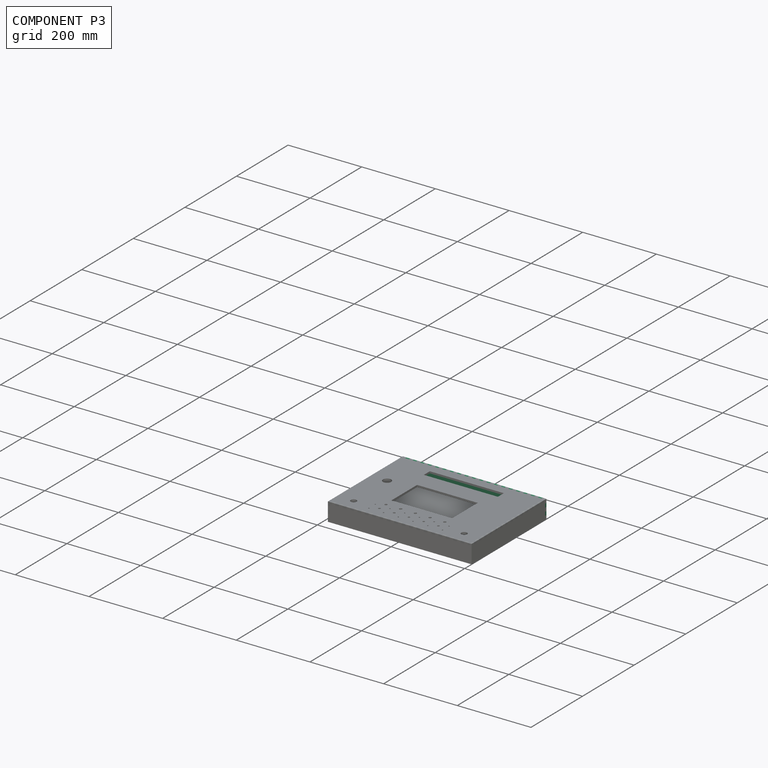
[diagram: component P3 — assembled]
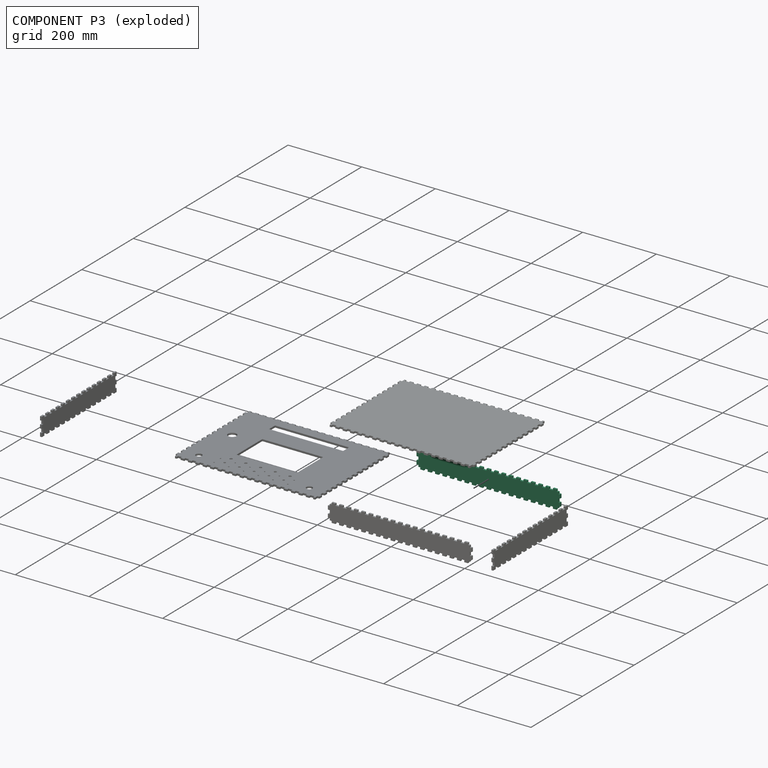
[diagram: component P3 — exploded]
COMPONENT P3 — recipe-attached (CADFS 00366135, mesh-verified: the recipe's output STEP matches this component's geometry to below the mesh-comparison resolution (tessellation chordal tolerance ~0.59 mm)).
Held by: FASTENED mate "Fastened 6" to P1.
Construction recipe (FeatureScript — the CAD program that rebuilds this solid; sketch coordinates are in the units given by the * unit suffixes, e.g. mm):

FeatureScript 1511;
import(path : "onshape/std/geometry.fs", version : "1511.0");
import(path : "onshape/std/common.fs", version : "1511.0");
const mm = millimeter;
const VERTEX = EntityType.VERTEX;
const EDGE = EntityType.EDGE;
const FACE = EntityType.FACE;
const BODY = EntityType.BODY;
function v(x, y){return vector(x, y);}
function OD(order){return orderDisambiguation(order);}
function OSD(set){return originalSetDisambiguation(set);}
function TD(topology){return topologyDisambiguation(topology);}
function TDD(query){return trueDependencyDisambiguation(query);}
function sQuery(a, b, c) {return sketchEntityQuery(a, b, c);}

annotation { "Feature Type Name" : "Feature", "Feature Type Description" : "" }
export const myFeature = defineFeature(function(context is Context, id is Id, definition is map)
    precondition{}
    {
        {
            var Q0;
            Q0=qCreatedBy(makeId("Right.planeOp"),FACE);
            var sketch = newSketch(context, id + "F0", { "sketchPlane" : qUnion([Q0])});
            skPoint(sketch, "E0.middle", {"position": v(0, 0) * mm});
            skLineSegment(sketch, "E1", {"start": v(-125, 20) * mm, "end": v(-125, 25) * mm});
            skLineSegment(sketch, "E2.1.0.0", {"start": v(-125, 25) * mm, "end": v(-115, 25) * mm});
            skLineSegment(sketch, "E2.1.0.1", {"start": v(-115, 25) * mm, "end": v(-115, 20) * mm});
            skLineSegment(sketch, "E2.1.0.2", {"start": v(-115, 20) * mm, "end": v(-105, 20) * mm});
            skLineSegment(sketch, "E2.1.0.3", {"start": v(-105, 20) * mm, "end": v(-105, 25) * mm});
            skLineSegment(sketch, "E2.2.0.0", {"start": v(-105, 25) * mm, "end": v(-95, 25) * mm});
            skLineSegment(sketch, "E2.2.0.1", {"start": v(-95, 25) * mm, "end": v(-95, 20) * mm});
            skLineSegment(sketch, "E2.2.0.2", {"start": v(-95, 20) * mm, "end": v(-85, 20) * mm});
            skLineSegment(sketch, "E2.2.0.3", {"start": v(-85, 20) * mm, "end": v(-85, 25) * mm});
            skLineSegment(sketch, "E2.3.0.0", {"start": v(-85, 25) * mm, "end": v(-75, 25) * mm});
            skLineSegment(sketch, "E2.3.0.1", {"start": v(-75, 25) * mm, "end": v(-75, 20) * mm});
            skLineSegment(sketch, "E2.3.0.2", {"start": v(-75, 20) * mm, "end": v(-65, 20) * mm});
            skLineSegment(sketch, "E2.3.0.3", {"start": v(-65, 20) * mm, "end": v(-65, 25) * mm});
            skLineSegment(sketch, "E2.4.0.0", {"start": v(-65, 25) * mm, "end": v(-55, 25) * mm});
            skLineSegment(sketch, "E2.4.0.1", {"start": v(-55, 25) * mm, "end": v(-55, 20) * mm});
            skLineSegment(sketch, "E2.4.0.2", {"start": v(-55, 20) * mm, "end": v(-45, 20) * mm});
            skLineSegment(sketch, "E2.4.0.3", {"start": v(-45, 20) * mm, "end": v(-45, 25) * mm});
            skLineSegment(sketch, "E2.5.0.0", {"start": v(-45, 25) * mm, "end": v(-35, 25) * mm});
            skLineSegment(sketch, "E2.5.0.1", {"start": v(-35, 25) * mm, "end": v(-35, 20) * mm});
            skLineSegment(sketch, "E2.5.0.2", {"start": v(-35, 20) * mm, "end": v(-25, 20) * mm});
            skLineSegment(sketch, "E2.5.0.3", {"start": v(-25, 20) * mm, "end": v(-25, 25) * mm});
            skLineSegment(sketch, "E2.6.0.0", {"start": v(-25, 25) * mm, "end": v(-15, 25) * mm});
            skLineSegment(sketch, "E2.6.0.1", {"start": v(-15, 25) * mm, "end": v(-15, 20) * mm});
            skLineSegment(sketch, "E2.6.0.2", {"start": v(-15, 20) * mm, "end": v(-5, 20) * mm});
            skLineSegment(sketch, "E2.6.0.3", {"start": v(-5, 20) * mm, "end": v(-5, 25) * mm});
            skLineSegment(sketch, "E2.7.0.0", {"start": v(-5, 25) * mm, "end": v(5, 25) * mm});
            skLineSegment(sketch, "E2.7.0.1", {"start": v(5, 25) * mm, "end": v(5, 20) * mm});
            skLineSegment(sketch, "E2.7.0.2", {"start": v(5, 20) * mm, "end": v(15, 20) * mm});
            skLineSegment(sketch, "E2.7.0.3", {"start": v(15, 20) * mm, "end": v(15, 25) * mm});
            skLineSegment(sketch, "E2.8.0.0", {"start": v(15, 25) * mm, "end": v(25, 25) * mm});
            skLineSegment(sketch, "E2.8.0.1", {"start": v(25, 25) * mm, "end": v(25, 20) * mm});
            skLineSegment(sketch, "E2.8.0.2", {"start": v(25, 20) * mm, "end": v(35, 20) * mm});
            skLineSegment(sketch, "E2.8.0.3", {"start": v(35, 20) * mm, "end": v(35, 25) * mm});
            skLineSegment(sketch, "E2.9.0.0", {"start": v(35, 25) * mm, "end": v(45, 25) * mm});
            skLineSegment(sketch, "E2.9.0.1", {"start": v(45, 25) * mm, "end": v(45, 20) * mm});
            skLineSegment(sketch, "E2.9.0.2", {"start": v(45, 20) * mm, "end": v(55, 20) * mm});
            skLineSegment(sketch, "E2.9.0.3", {"start": v(55, 20) * mm, "end": v(55, 25) * mm});
            skLineSegment(sketch, "E2.10.0.0", {"start": v(55, 25) * mm, "end": v(65, 25) * mm});
            skLineSegment(sketch, "E2.10.0.1", {"start": v(65, 25) * mm, "end": v(65, 20) * mm});
            skLineSegment(sketch, "E2.10.0.2", {"start": v(65, 20) * mm, "end": v(75, 20) * mm});
            skLineSegment(sketch, "E2.10.0.3", {"start": v(75, 20) * mm, "end": v(75, 25) * mm});
            skLineSegment(sketch, "E2.11.0.0", {"start": v(75, 25) * mm, "end": v(85, 25) * mm});
            skLineSegment(sketch, "E2.11.0.1", {"start": v(85, 25) * mm, "end": v(85, 20) * mm});
            skLineSegment(sketch, "E2.11.0.2", {"start": v(85, 20) * mm, "end": v(95, 20) * mm});
            skLineSegment(sketch, "E2.11.0.3", {"start": v(95, 20) * mm, "end": v(95, 25) * mm});
            skLineSegment(sketch, "E2.12.0.0", {"start": v(95, 25) * mm, "end": v(105, 25) * mm});
            skLineSegment(sketch, "E2.12.0.1", {"start": v(105, 25) * mm, "end": v(105, 20) * mm});
            skLineSegment(sketch, "E2.12.0.2", {"start": v(105, 20) * mm, "end": v(115, 20) * mm});
            skLineSegment(sketch, "E2.12.0.3", {"start": v(115, 20) * mm, "end": v(115, 25) * mm});
            skLineSegment(sketch, "E2.13.0.0", {"start": v(115, 25) * mm, "end": v(125, 25) * mm});
            skLineSegment(sketch, "E2.13.0.1", {"start": v(125, 25) * mm, "end": v(125, 20) * mm});
            skLineSegment(sketch, "E2.13.0.2", {"start": v(125, 20) * mm, "end": v(135, 20) * mm});
            skLineSegment(sketch, "E2.13.0.3", {"start": v(135, 20) * mm, "end": v(135, 25) * mm});
            skLineSegment(sketch, "E3", {"start": v(135, 25) * mm, "end": v(145, 25) * mm});
            skLineSegment(sketch, "E4", {"start": v(-125, -20) * mm, "end": v(-125, -25) * mm});
            skLineSegment(sketch, "E5.1.0.0", {"start": v(-125, -25) * mm, "end": v(-115, -25) * mm});
            skLineSegment(sketch, "E5.1.0.1", {"start": v(-115, -25) * mm, "end": v(-115, -20) * mm});
            skLineSegment(sketch, "E5.1.0.2", {"start": v(-115, -20) * mm, "end": v(-105, -20) * mm});
            skLineSegment(sketch, "E5.1.0.3", {"start": v(-105, -20) * mm, "end": v(-105, -25) * mm});
            skLineSegment(sketch, "E5.2.0.0", {"start": v(-105, -25) * mm, "end": v(-95, -25) * mm});
            skLineSegment(sketch, "E5.2.0.1", {"start": v(-95, -25) * mm, "end": v(-95, -20) * mm});
            skLineSegment(sketch, "E5.2.0.2", {"start": v(-95, -20) * mm, "end": v(-85, -20) * mm});
            skLineSegment(sketch, "E5.2.0.3", {"start": v(-85, -20) * mm, "end": v(-85, -25) * mm});
            skLineSegment(sketch, "E5.3.0.0", {"start": v(-85, -25) * mm, "end": v(-75, -25) * mm});
            skLineSegment(sketch, "E5.3.0.1", {"start": v(-75, -25) * mm, "end": v(-75, -20) * mm});
            skLineSegment(sketch, "E5.3.0.2", {"start": v(-75, -20) * mm, "end": v(-65, -20) * mm});
            skLineSegment(sketch, "E5.3.0.3", {"start": v(-65, -20) * mm, "end": v(-65, -25) * mm});
            skLineSegment(sketch, "E5.4.0.0", {"start": v(-65, -25) * mm, "end": v(-55, -25) * mm});
            skLineSegment(sketch, "E5.4.0.1", {"start": v(-55, -25) * mm, "end": v(-55, -20) * mm});
            skLineSegment(sketch, "E5.4.0.2", {"start": v(-55, -20) * mm, "end": v(-45, -20) * mm});
            skLineSegment(sketch, "E5.4.0.3", {"start": v(-45, -20) * mm, "end": v(-45, -25) * mm});
            skLineSegment(sketch, "E5.5.0.0", {"start": v(-45, -25) * mm, "end": v(-35, -25) * mm});
            skLineSegment(sketch, "E5.5.0.1", {"start": v(-35, -25) * mm, "end": v(-35, -20) * mm});
            skLineSegment(sketch, "E5.5.0.2", {"start": v(-35, -20) * mm, "end": v(-25, -20) * mm});
            skLineSegment(sketch, "E5.5.0.3", {"start": v(-25, -20) * mm, "end": v(-25, -25) * mm});
            skLineSegment(sketch, "E5.6.0.0", {"start": v(-25, -25) * mm, "end": v(-15, -25) * mm});
            skLineSegment(sketch, "E5.6.0.1", {"start": v(-15, -25) * mm, "end": v(-15, -20) * mm});
            skLineSegment(sketch, "E5.6.0.2", {"start": v(-15, -20) * mm, "end": v(-5, -20) * mm});
            skLineSegment(sketch, "E5.6.0.3", {"start": v(-5, -20) * mm, "end": v(-5, -25) * mm});
            skLineSegment(sketch, "E5.7.0.0", {"start": v(-5, -25) * mm, "end": v(5, -25) * mm});
            skLineSegment(sketch, "E5.7.0.1", {"start": v(5, -25) * mm, "end": v(5, -20) * mm});
            skLineSegment(sketch, "E5.7.0.2", {"start": v(5, -20) * mm, "end": v(15, -20) * mm});
            skLineSegment(sketch, "E5.7.0.3", {"start": v(15, -20) * mm, "end": v(15, -25) * mm});
            skLineSegment(sketch, "E5.8.0.0", {"start": v(15, -25) * mm, "end": v(25, -25) * mm});
            skLineSegment(sketch, "E5.8.0.1", {"start": v(25, -25) * mm, "end": v(25, -20) * mm});
            skLineSegment(sketch, "E5.8.0.2", {"start": v(25, -20) * mm, "end": v(35, -20) * mm});
            skLineSegment(sketch, "E5.8.0.3", {"start": v(35, -20) * mm, "end": v(35, -25) * mm});
            skLineSegment(sketch, "E5.9.0.0", {"start": v(35, -25) * mm, "end": v(45, -25) * mm});
            skLineSegment(sketch, "E5.9.0.1", {"start": v(45, -25) * mm, "end": v(45, -20) * mm});
            skLineSegment(sketch, "E5.9.0.2", {"start": v(45, -20) * mm, "end": v(55, -20) * mm});
            skLineSegment(sketch, "E5.9.0.3", {"start": v(55, -20) * mm, "end": v(55, -25) * mm});
            skLineSegment(sketch, "E5.10.0.0", {"start": v(55, -25) * mm, "end": v(65, -25) * mm});
            skLineSegment(sketch, "E5.10.0.1", {"start": v(65, -25) * mm, "end": v(65, -20) * mm});
            skLineSegment(sketch, "E5.10.0.2", {"start": v(65, -20) * mm, "end": v(75, -20) * mm});
            skLineSegment(sketch, "E5.10.0.3", {"start": v(75, -20) * mm, "end": v(75, -25) * mm});
            skLineSegment(sketch, "E5.11.0.0", {"start": v(75, -25) * mm, "end": v(85, -25) * mm});
            skLineSegment(sketch, "E5.11.0.1", {"start": v(85, -25) * mm, "end": v(85, -20) * mm});
            skLineSegment(sketch, "E5.11.0.2", {"start": v(85, -20) * mm, "end": v(95, -20) * mm});
            skLineSegment(sketch, "E5.11.0.3", {"start": v(95, -20) * mm, "end": v(95, -25) * mm});
            skLineSegment(sketch, "E5.12.0.0", {"start": v(95, -25) * mm, "end": v(105, -25) * mm});
            skLineSegment(sketch, "E5.12.0.1", {"start": v(105, -25) * mm, "end": v(105, -20) * mm});
            skLineSegment(sketch, "E5.12.0.2", {"start": v(105, -20) * mm, "end": v(115, -20) * mm});
            skLineSegment(sketch, "E5.12.0.3", {"start": v(115, -20) * mm, "end": v(115, -25) * mm});
            skLineSegment(sketch, "E5.13.0.0", {"start": v(115, -25) * mm, "end": v(125, -25) * mm});
            skLineSegment(sketch, "E5.13.0.1", {"start": v(125, -25) * mm, "end": v(125, -20) * mm});
            skLineSegment(sketch, "E5.13.0.2", {"start": v(125, -20) * mm, "end": v(135, -20) * mm});
            skLineSegment(sketch, "E5.13.0.3", {"start": v(135, -20) * mm, "end": v(135, -25) * mm});
            skLineSegment(sketch, "E6", {"start": v(135, -25) * mm, "end": v(145, -25) * mm});
            skLineSegment(sketch, "E7", {"start": v(-130, 20) * mm, "end": v(-125, 20) * mm});
            skLineSegment(sketch, "E8", {"start": v(-130, -20) * mm, "end": v(-125, -20) * mm});
            skLineSegment(sketch, "E9", {"start": v(-130, 20) * mm, "end": v(-130, 15) * mm});
            skLineSegment(sketch, "E10", {"start": v(-130, 15) * mm, "end": v(-135, 15) * mm});
            skLineSegment(sketch, "E11", {"start": v(-135, 15) * mm, "end": v(-135, 5) * mm});
            skLineSegment(sketch, "E12", {"start": v(-135, 5) * mm, "end": v(-130, 5) * mm});
            skLineSegment(sketch, "E13", {"start": v(-130, 5) * mm, "end": v(-130, -5) * mm});
            skLineSegment(sketch, "E14", {"start": v(-130, -5) * mm, "end": v(-135, -5) * mm});
            skLineSegment(sketch, "E15", {"start": v(-135, -5) * mm, "end": v(-135, -15) * mm});
            skLineSegment(sketch, "E16", {"start": v(-135, -15) * mm, "end": v(-130, -15) * mm});
            skLineSegment(sketch, "E17", {"start": v(-130, -15) * mm, "end": v(-130, -20) * mm});
            skLineSegment(sketch, "E18", {"start": v(145, 25) * mm, "end": v(145, 20) * mm});
            skLineSegment(sketch, "E19", {"start": v(145, -25) * mm, "end": v(145, -20) * mm});
            skLineSegment(sketch, "E20", {"start": v(245, 20) * mm, "end": v(250, 20) * mm});
            skLineSegment(sketch, "E21", {"start": v(245, -20) * mm, "end": v(250, -20) * mm});
            skLineSegment(sketch, "E22", {"start": v(250, -20) * mm, "end": v(250, -15) * mm});
            skLineSegment(sketch, "E23", {"start": v(250, -15) * mm, "end": v(255, -15) * mm});
            skLineSegment(sketch, "E24", {"start": v(255, -15) * mm, "end": v(255, -5) * mm});
            skLineSegment(sketch, "E25", {"start": v(255, -5) * mm, "end": v(250, -5) * mm});
            skLineSegment(sketch, "E26", {"start": v(250, -5) * mm, "end": v(250, 5) * mm});
            skLineSegment(sketch, "E27", {"start": v(250, 5) * mm, "end": v(255, 5) * mm});
            skLineSegment(sketch, "E28", {"start": v(255, 5) * mm, "end": v(255, 15) * mm});
            skLineSegment(sketch, "E29", {"start": v(255, 15) * mm, "end": v(250, 15) * mm});
            skLineSegment(sketch, "E30", {"start": v(250, 15) * mm, "end": v(250, 20) * mm});
            skLineSegment(sketch, "E31.9.0.2", {"start": v(145, 20) * mm, "end": v(155, 20) * mm});
            skLineSegment(sketch, "E31.9.0.3", {"start": v(155, 20) * mm, "end": v(155, 25) * mm});
            skLineSegment(sketch, "E31.10.0.0", {"start": v(155, 25) * mm, "end": v(165, 25) * mm});
            skLineSegment(sketch, "E31.10.0.1", {"start": v(165, 25) * mm, "end": v(165, 20) * mm});
            skLineSegment(sketch, "E31.10.0.2", {"start": v(165, 20) * mm, "end": v(175, 20) * mm});
            skLineSegment(sketch, "E31.10.0.3", {"start": v(175, 20) * mm, "end": v(175, 25) * mm});
            skLineSegment(sketch, "E31.11.0.0", {"start": v(175, 25) * mm, "end": v(185, 25) * mm});
            skLineSegment(sketch, "E31.11.0.1", {"start": v(185, 25) * mm, "end": v(185, 20) * mm});
            skLineSegment(sketch, "E31.11.0.2", {"start": v(185, 20) * mm, "end": v(195, 20) * mm});
            skLineSegment(sketch, "E31.11.0.3", {"start": v(195, 20) * mm, "end": v(195, 25) * mm});
            skLineSegment(sketch, "E31.12.0.0", {"start": v(195, 25) * mm, "end": v(205, 25) * mm});
            skLineSegment(sketch, "E31.12.0.1", {"start": v(205, 25) * mm, "end": v(205, 20) * mm});
            skLineSegment(sketch, "E31.12.0.2", {"start": v(205, 20) * mm, "end": v(215, 20) * mm});
            skLineSegment(sketch, "E31.12.0.3", {"start": v(215, 20) * mm, "end": v(215, 25) * mm});
            skLineSegment(sketch, "E31.13.0.0", {"start": v(215, 25) * mm, "end": v(225, 25) * mm});
            skLineSegment(sketch, "E31.13.0.1", {"start": v(225, 25) * mm, "end": v(225, 20) * mm});
            skLineSegment(sketch, "E31.13.0.2", {"start": v(225, 20) * mm, "end": v(235, 20) * mm});
            skLineSegment(sketch, "E31.13.0.3", {"start": v(235, 20) * mm, "end": v(235, 25) * mm});
            skLineSegment(sketch, "E32", {"start": v(235, 25) * mm, "end": v(245, 25) * mm});
            skLineSegment(sketch, "E33", {"start": v(245, 25) * mm, "end": v(245, 20) * mm});
            skLineSegment(sketch, "E34.9.0.2", {"start": v(145, -20) * mm, "end": v(155, -20) * mm});
            skLineSegment(sketch, "E34.9.0.3", {"start": v(155, -20) * mm, "end": v(155, -25) * mm});
            skLineSegment(sketch, "E34.10.0.0", {"start": v(155, -25) * mm, "end": v(165, -25) * mm});
            skLineSegment(sketch, "E34.10.0.1", {"start": v(165, -25) * mm, "end": v(165, -20) * mm});
            skLineSegment(sketch, "E34.10.0.2", {"start": v(165, -20) * mm, "end": v(175, -20) * mm});
            skLineSegment(sketch, "E34.10.0.3", {"start": v(175, -20) * mm, "end": v(175, -25) * mm});
            skLineSegment(sketch, "E34.11.0.0", {"start": v(175, -25) * mm, "end": v(185, -25) * mm});
            skLineSegment(sketch, "E34.11.0.1", {"start": v(185, -25) * mm, "end": v(185, -20) * mm});
            skLineSegment(sketch, "E34.11.0.2", {"start": v(185, -20) * mm, "end": v(195, -20) * mm});
            skLineSegment(sketch, "E34.11.0.3", {"start": v(195, -20) * mm, "end": v(195, -25) * mm});
            skLineSegment(sketch, "E34.12.0.0", {"start": v(195, -25) * mm, "end": v(205, -25) * mm});
            skLineSegment(sketch, "E34.12.0.1", {"start": v(205, -25) * mm, "end": v(205, -20) * mm});
            skLineSegment(sketch, "E34.12.0.2", {"start": v(205, -20) * mm, "end": v(215, -20) * mm});
            skLineSegment(sketch, "E34.12.0.3", {"start": v(215, -20) * mm, "end": v(215, -25) * mm});
            skLineSegment(sketch, "E34.13.0.0", {"start": v(215, -25) * mm, "end": v(225, -25) * mm});
            skLineSegment(sketch, "E34.13.0.1", {"start": v(225, -25) * mm, "end": v(225, -20) * mm});
            skLineSegment(sketch, "E34.13.0.2", {"start": v(225, -20) * mm, "end": v(235, -20) * mm});
            skLineSegment(sketch, "E34.13.0.3", {"start": v(235, -20) * mm, "end": v(235, -25) * mm});
            skLineSegment(sketch, "E35", {"start": v(235, -25) * mm, "end": v(245, -25) * mm});
            skLineSegment(sketch, "E36", {"start": v(245, -25) * mm, "end": v(245, -20) * mm});
            skSolve(sketch);
        }
        {
            var Q0;
            Q0=qSketchRegion(id+"F0",true);
            extrude(context, id + "F1", {"entities" : qUnion([Q0]), "endBound" : BoundingType.SYMMETRIC, "depth" : 5 * mm});
        }
    });
